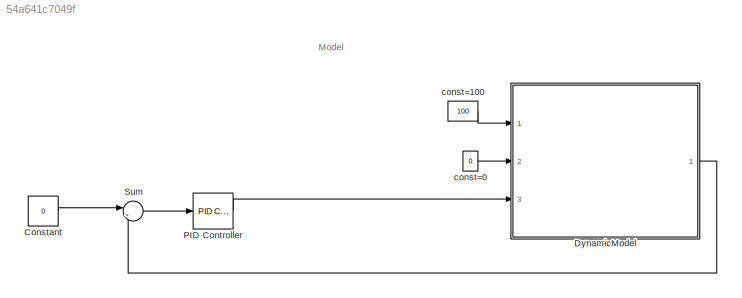
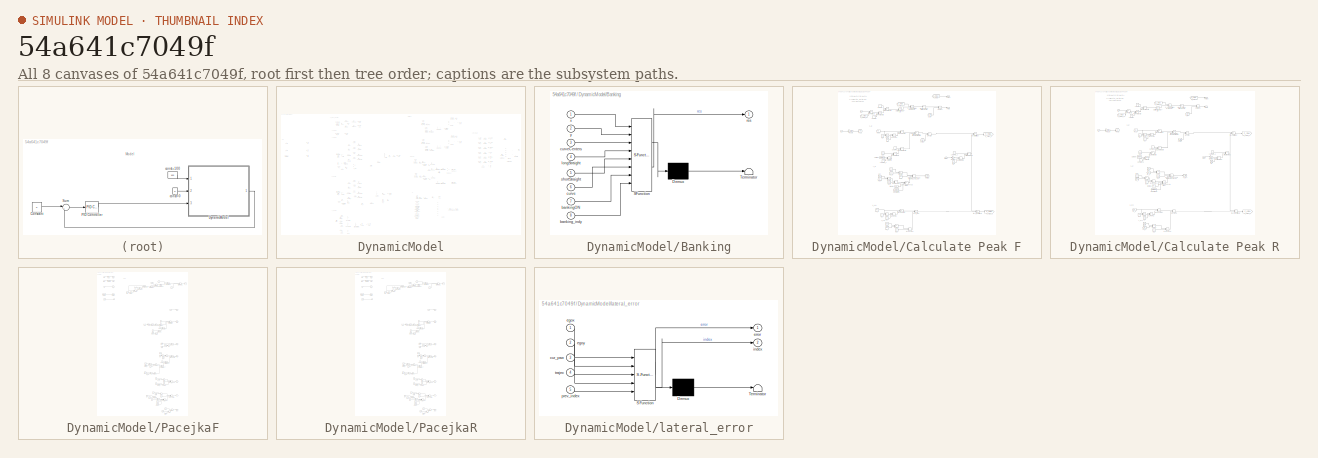
[diagram: thumbnail index - all 8 canvases of the model, root first then tree order]
MODEL slx_54a641c7049f
KIND model
CONFIG AbsTol = auto
CONFIG EnableMultiTasking = off
CONFIG FixedStep = auto
CONFIG MaxStep = auto
CONFIG MinStep = auto
CONFIG RelTol = 1e-3
CONFIG SampleTimeConstraint = Unconstrained
CONFIG Solver = ode15s
CONFIG SolverName = ode15s
CONFIG StartTime = 0.0
CONFIG StopTime = 71
BLOCK [Constant] Constant
  Value = 0
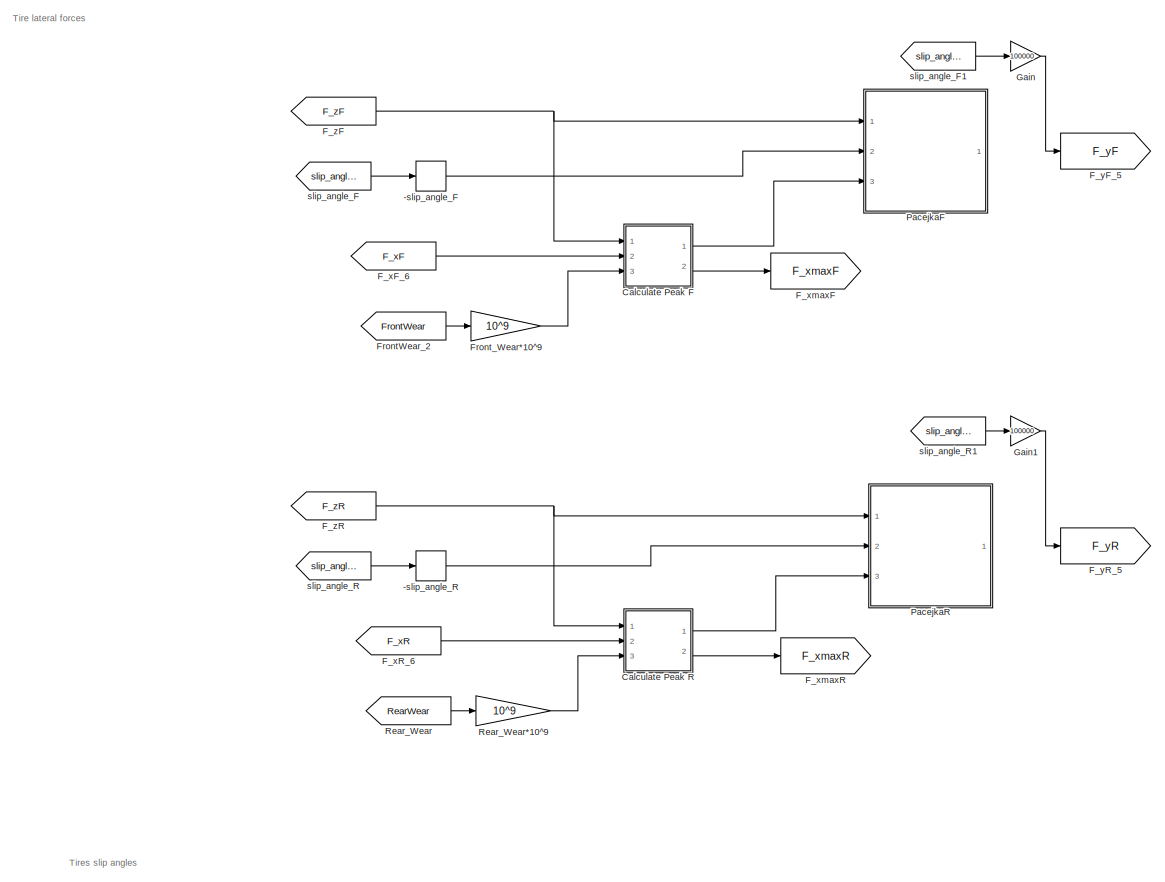
[diagram: DynamicModel - part 1/10, top center region]
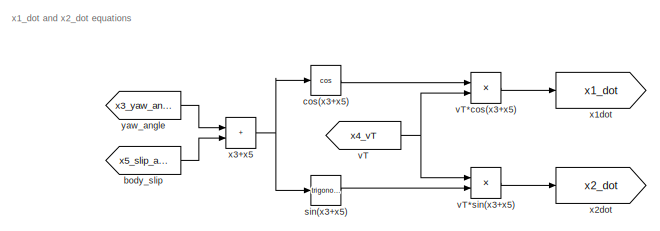
[diagram: DynamicModel - part 2/10, top left region]
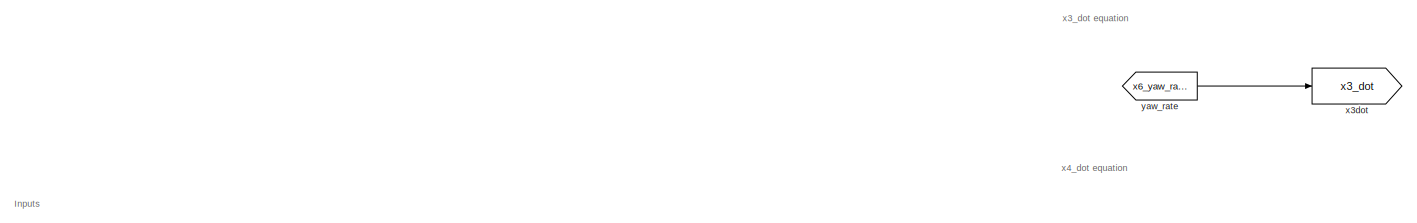
[diagram: DynamicModel - part 3/10, top left region]
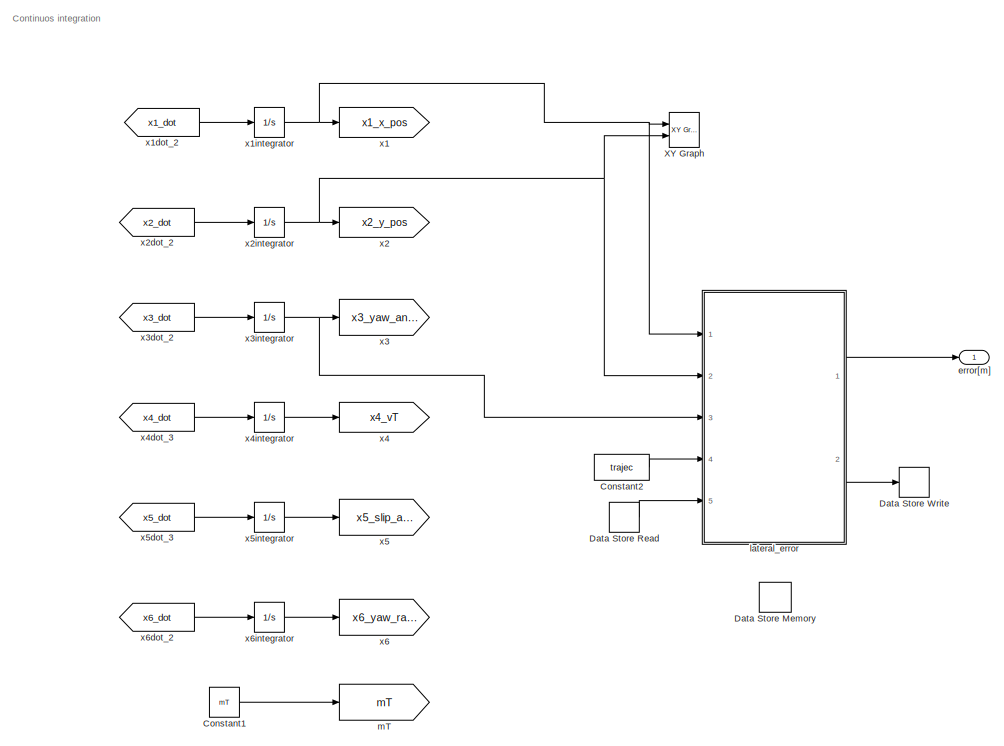
[diagram: DynamicModel - part 4/10, top right region]
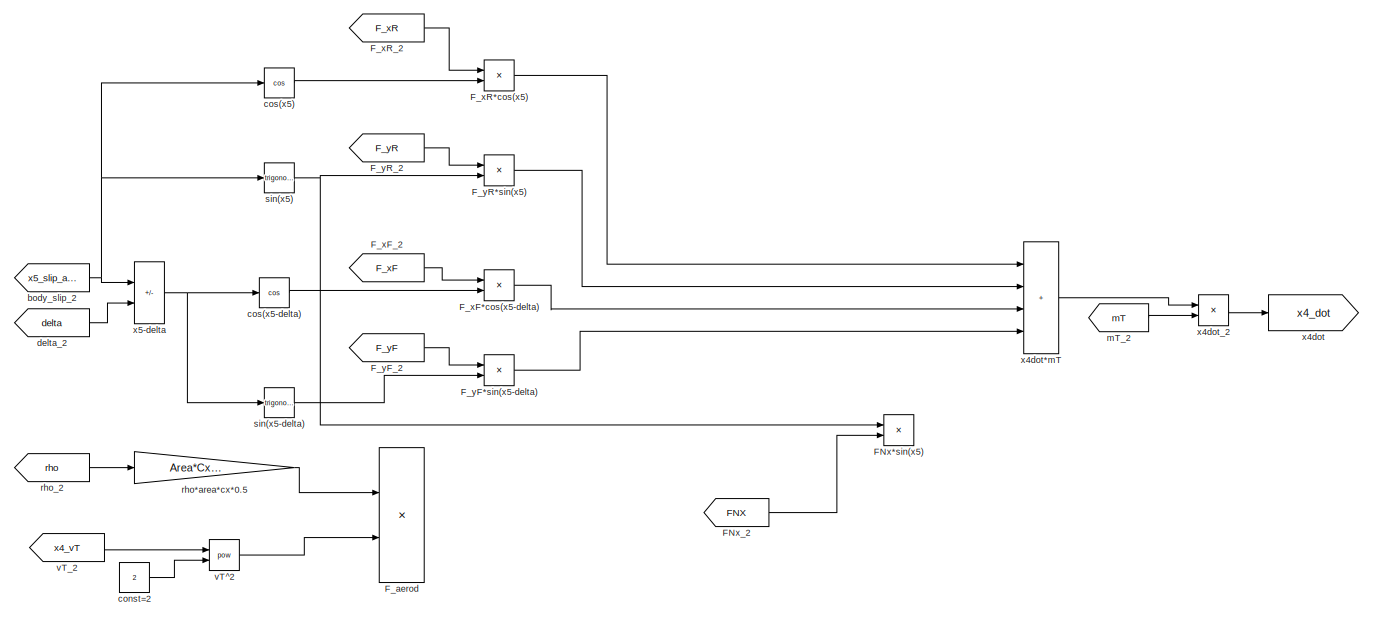
[diagram: DynamicModel - part 5/10, central region]
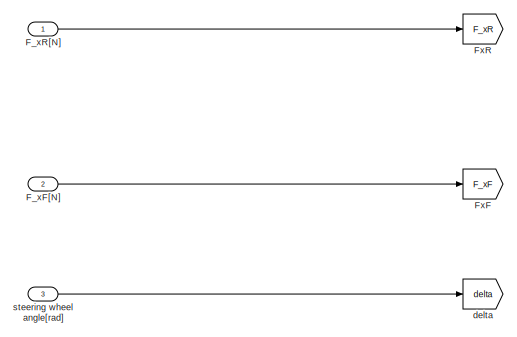
[diagram: DynamicModel - part 6/10, top left region]
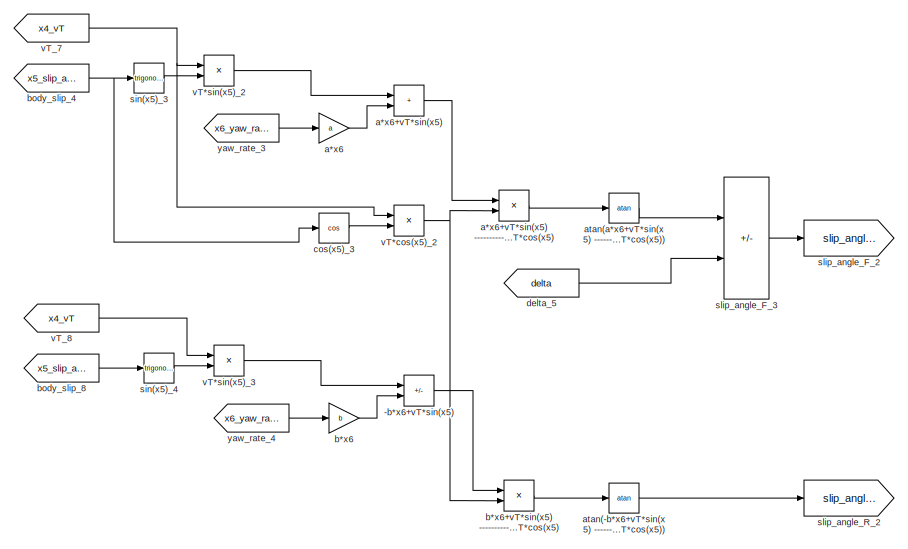
[diagram: DynamicModel - part 7/10, central region]
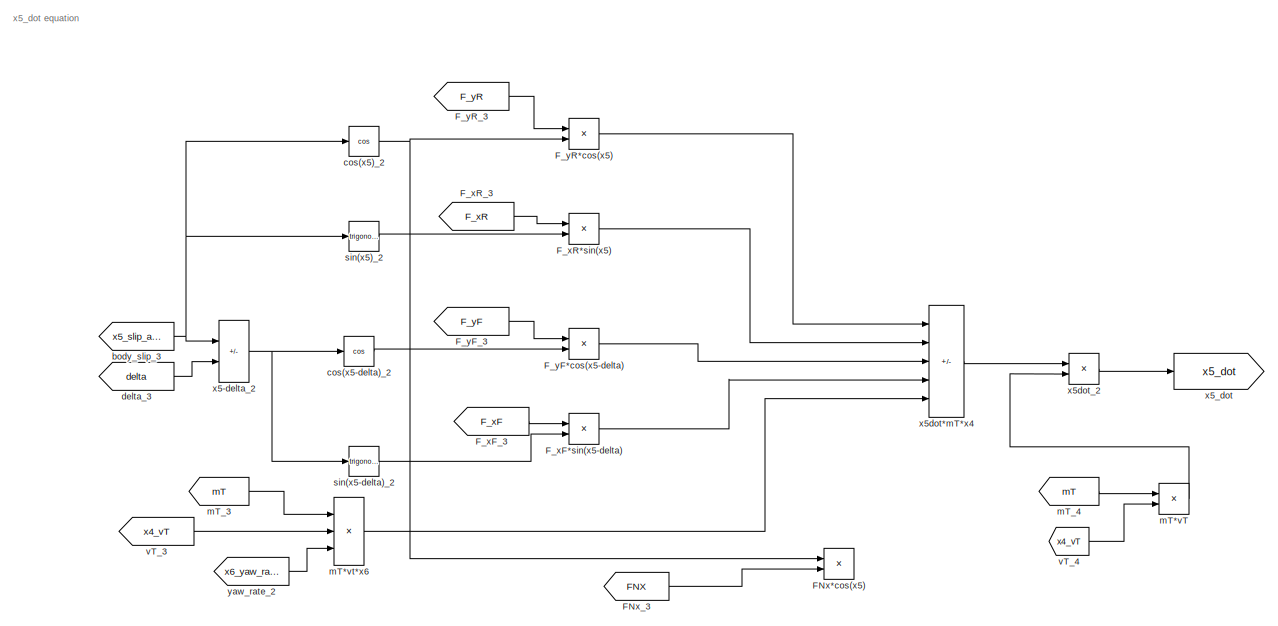
[diagram: DynamicModel - part 8/10, central region]
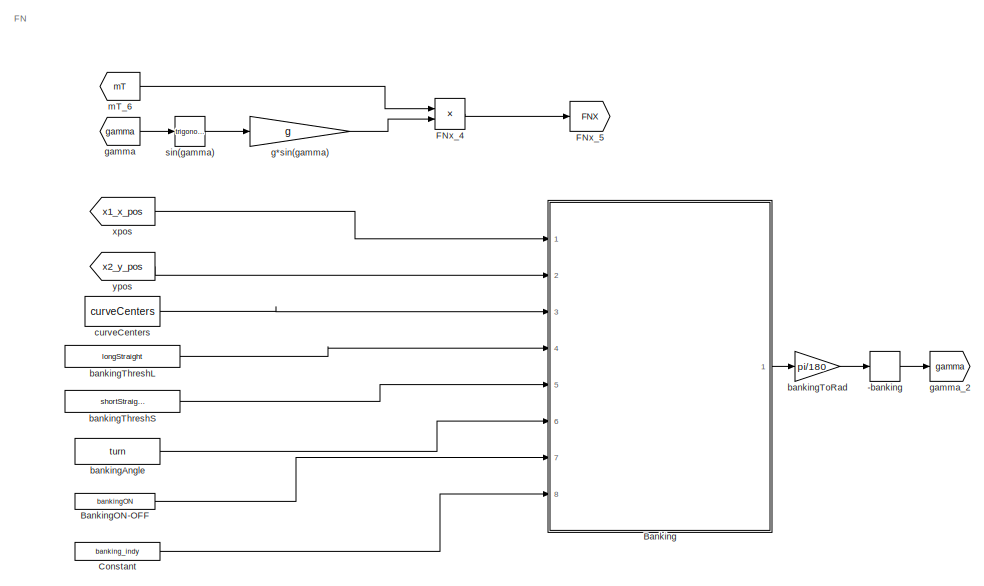
[diagram: DynamicModel - part 9/10, bottom center region]
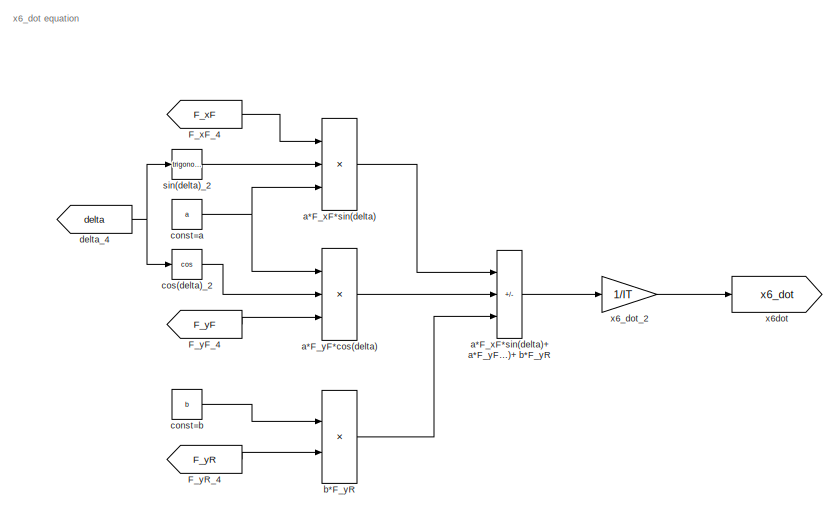
[diagram: DynamicModel - part 10/10, bottom left region]
BLOCK [SubSystem] DynamicModel
  Ports = [3, 1]
  RequestExecContextInheritance = off
BLOCK [Sum] DynamicModel/-b*x6+vT*sin(x5)
  IconShape = rectangular
  Inputs = +-
  Ports = [2, 1]
BLOCK [UnaryMinus] DynamicModel/-banking
  Commented = on
BLOCK [UnaryMinus] DynamicModel/-slip_angle_F
  Commented = on
BLOCK [UnaryMinus] DynamicModel/-slip_angle_R
  Commented = on
BLOCK [SubSystem] DynamicModel/Banking
  Commented = on
  ErrorFcn = Stateflow.Translate.translate
  PermitHierarchicalResolution = ExplicitOnly
  Ports = [8, 1]
  RequestExecContextInheritance = off
  SFBlockType = MATLAB Function
  TreatAsAtomicUnit = on
BLOCK [Demux] DynamicModel/Banking/ Demux 
  Outputs = 1
  Ports = [1, 1]
BLOCK [S-Function] DynamicModel/Banking/ SFunction 
  EnableBusSupport = on
  FunctionName = sf_sfun
  PortCounts = [8 2]
  Ports = [8, 2]
  SFcnIsStateOwnerBlock = off
  SFunctionDeploymentMode = off
  Tag = Stateflow S-Function 2
BLOCK [Terminator] DynamicModel/Banking/ Terminator 
BLOCK [Inport] DynamicModel/Banking/bankingON
  Port = 7
BLOCK [Inport] DynamicModel/Banking/banking_indy
  Port = 8
BLOCK [Inport] DynamicModel/Banking/curve
  Port = 6
BLOCK [Inport] DynamicModel/Banking/curveCenters
  Port = 3
BLOCK [Inport] DynamicModel/Banking/longStraight
  Port = 4
BLOCK [Outport] DynamicModel/Banking/res
BLOCK [Inport] DynamicModel/Banking/shortStraight
  Port = 5
BLOCK [Inport] DynamicModel/Banking/x
BLOCK [Inport] DynamicModel/Banking/y
  Port = 2
BLOCK [Constant] DynamicModel/BankingON-OFF
  Commented = on
  Value = bankingON
BLOCK [SubSystem] DynamicModel/Calculate Peak F
  Commented = on
  Ports = [3, 2]
  RequestExecContextInheritance = off
BLOCK [Product] DynamicModel/Calculate Peak F/((a1Fz+a2)Fz) (1-a15*camber^2)
  Ports = [2, 1]
BLOCK [Product] DynamicModel/Calculate Peak F/(D+V_lat)*wear
  Ports = [2, 1]
BLOCK [Product] DynamicModel/Calculate Peak F/(D+V_long)*wear
  Ports = [2, 1]
BLOCK [Math] DynamicModel/Calculate Peak F/(Fx*Fymax^-1)^2
  Operator = pow
  Ports = [2, 1]
BLOCK [Product] DynamicModel/Calculate Peak F/(a1Fz+a2)Fz
  Ports = [2, 1]
BLOCK [Product] DynamicModel/Calculate Peak F/(b1Fz+b2)Fz
  Ports = [2, 1]
BLOCK [Product] DynamicModel/Calculate Peak F/1 ------ w1*wear+w2
  Inputs = */
  Ports = [2, 1]
BLOCK [Sum] DynamicModel/Calculate Peak F/1-(Fx*Fymax^-1)^2
  IconShape = rectangular
  Inputs = +-
  Ports = [2, 1]
BLOCK [Sum] DynamicModel/Calculate Peak F/1-a15*camber^2
  IconShape = rectangular
  Inputs = +-
  Ports = [2, 1]
BLOCK [Constant] DynamicModel/Calculate Peak F/Constant11
  Value = camber
BLOCK [Sum] DynamicModel/Calculate Peak F/D+V_lat
  IconShape = rectangular
  Ports = [2, 1]
BLOCK [Sum] DynamicModel/Calculate Peak F/D+V_long
  IconShape = rectangular
  Ports = [2, 1]
BLOCK [From] DynamicModel/Calculate Peak F/F_xmax
  GotoTag = F_xmax
BLOCK [Goto] DynamicModel/Calculate Peak F/F_xmax_2
  GotoTag = F_xmax
BLOCK [From] DynamicModel/Calculate Peak F/F_xmax_3
  GotoTag = F_xmax
BLOCK [Product] DynamicModel/Calculate Peak F/F_ymax* sqrt(1-(Fx*Fymax^-1)^2) 
  Ports = [2, 1]
BLOCK [From] DynamicModel/Calculate Peak F/F_ymax_2
  GotoTag = F_ymax
BLOCK [Goto] DynamicModel/Calculate Peak F/F_ymax_3
  GotoTag = F_ymax
BLOCK [From] DynamicModel/Calculate Peak F/From22
  GotoTag = Fz
BLOCK [Inport] DynamicModel/Calculate Peak F/Fx
  Port = 2
  Unit = N
BLOCK [Product] DynamicModel/Calculate Peak F/Fx*Fymax^-1
  Inputs = */
  Ports = [2, 1]
BLOCK [Outport] DynamicModel/Calculate Peak F/Fxmax
  Port = 2
BLOCK [Inport] DynamicModel/Calculate Peak F/Fz
  Unit = N
BLOCK [Gain] DynamicModel/Calculate Peak F/Fz*10^-3
  Gain = 10^-3
BLOCK [Goto] DynamicModel/Calculate Peak F/Fz_2
  GotoTag = Fz
BLOCK [From] DynamicModel/Calculate Peak F/Fz_3
  GotoTag = Fz
BLOCK [From] DynamicModel/Calculate Peak F/Fz_4
  GotoTag = Fz
BLOCK [From] DynamicModel/Calculate Peak F/Fz_5
  GotoTag = Fz
BLOCK [From] DynamicModel/Calculate Peak F/Fz_6
  GotoTag = Fz
BLOCK [From] DynamicModel/Calculate Peak F/Fz_7
  GotoTag = Fz
BLOCK [Outport] DynamicModel/Calculate Peak F/Peak
BLOCK [From] DynamicModel/Calculate Peak F/V_lat
  GotoTag = V_lat
BLOCK [From] DynamicModel/Calculate Peak F/V_lat_2
  GotoTag = V_lat
BLOCK [Goto] DynamicModel/Calculate Peak F/V_lat_3
  GotoTag = V_lat
BLOCK [Inport] DynamicModel/Calculate Peak F/Wear
  Port = 3
BLOCK [Constant] DynamicModel/Calculate Peak F/a1
  Value = a1
BLOCK [Constant] DynamicModel/Calculate Peak F/a11
  Value = a11
BLOCK [Product] DynamicModel/Calculate Peak F/a11Fz
  Ports = [2, 1]
BLOCK [Constant] DynamicModel/Calculate Peak F/a12
  Value = a12
BLOCK [Constant] DynamicModel/Calculate Peak F/a13
  Value = a13
BLOCK [Product] DynamicModel/Calculate Peak F/a13Fz
  Ports = [2, 1]
BLOCK [Sum] DynamicModel/Calculate Peak F/a13Fz+a14
  IconShape = rectangular
  Ports = [2, 1]
BLOCK [Product] DynamicModel/Calculate Peak F/a13Fz+a14+Fz+camber
  Inputs = 3
  Ports = [3, 1]
BLOCK [Sum] DynamicModel/Calculate Peak F/a13Fz+a14+Fz+camber +a12+a11Fz
  IconShape = rectangular
  Inputs = +++
  Ports = [3, 1]
BLOCK [Constant] DynamicModel/Calculate Peak F/a14
  Value = a14
BLOCK [Constant] DynamicModel/Calculate Peak F/a15
  Value = a15
BLOCK [Product] DynamicModel/Calculate Peak F/a15*camber^2
  Ports = [2, 1]
BLOCK [Product] DynamicModel/Calculate Peak F/a1Fz
  Ports = [2, 1]
BLOCK [Sum] DynamicModel/Calculate Peak F/a1Fz+a2
  IconShape = rectangular
  Ports = [2, 1]
BLOCK [Constant] DynamicModel/Calculate Peak F/a2
  Value = a2
BLOCK [Abs] DynamicModel/Calculate Peak F/abs(F_ymax* sqrt(1-(Fx*Fymax^-1)^2) )
  SaturateOnIntegerOverflow = off
BLOCK [Constant] DynamicModel/Calculate Peak F/b1
  Value = b1
BLOCK [Constant] DynamicModel/Calculate Peak F/b11
  Value = b11
BLOCK [Product] DynamicModel/Calculate Peak F/b11Fz
  Ports = [2, 1]
BLOCK [Sum] DynamicModel/Calculate Peak F/b11Fz+b12
  IconShape = rectangular
  Ports = [2, 1]
BLOCK [Constant] DynamicModel/Calculate Peak F/b12
  Value = b12
BLOCK [Product] DynamicModel/Calculate Peak F/b1Fz
  Ports = [2, 1]
BLOCK [Sum] DynamicModel/Calculate Peak F/b1Fz+b2
  IconShape = rectangular
  Ports = [2, 1]
BLOCK [Constant] DynamicModel/Calculate Peak F/b2
  Value = b2
BLOCK [Constant] DynamicModel/Calculate Peak F/camber
  Value = camber
BLOCK [Math] DynamicModel/Calculate Peak F/camber^2
  Operator = pow
  Ports = [2, 1]
BLOCK [Constant] DynamicModel/Calculate Peak F/const=1
BLOCK [Constant] DynamicModel/Calculate Peak F/const=1_2
BLOCK [Constant] DynamicModel/Calculate Peak F/const=1_3
BLOCK [Constant] DynamicModel/Calculate Peak F/const=2
  Value = 2
BLOCK [Constant] DynamicModel/Calculate Peak F/const=2_2
  Value = 2
BLOCK [Sum] DynamicModel/Calculate Peak F/newD+V
  IconShape = rectangular
  Inputs = +-
  Ports = [2, 1]
BLOCK [Sqrt] DynamicModel/Calculate Peak F/sqrt(1-(Fx*Fymax^-1)^2)
BLOCK [Gain] DynamicModel/Calculate Peak F/w1*wear
  Gain = w1
BLOCK [Sum] DynamicModel/Calculate Peak F/w1*wear+w2
  IconShape = rectangular
  Ports = [2, 1]
BLOCK [Constant] DynamicModel/Calculate Peak F/w2
  Value = w2
BLOCK [SubSystem] DynamicModel/Calculate Peak R
  Commented = on
  Ports = [3, 2]
  RequestExecContextInheritance = off
BLOCK [Product] DynamicModel/Calculate Peak R/((a1Fz+a2)Fz) (1-a15*camber^2)
  Ports = [2, 1]
BLOCK [Product] DynamicModel/Calculate Peak R/(D+V_lat)*wear
  Ports = [2, 1]
BLOCK [Product] DynamicModel/Calculate Peak R/(D+V_long)*wear
  Ports = [2, 1]
BLOCK [Math] DynamicModel/Calculate Peak R/(Fx*Fymax^-1)^2
  Operator = pow
  Ports = [2, 1]
BLOCK [Product] DynamicModel/Calculate Peak R/(a1Fz+a2)Fz
  Ports = [2, 1]
BLOCK [Product] DynamicModel/Calculate Peak R/(b1Fz+b2)Fz
  Ports = [2, 1]
BLOCK [Product] DynamicModel/Calculate Peak R/1 ------ w1*wear+w2
  Inputs = */
  Ports = [2, 1]
BLOCK [Sum] DynamicModel/Calculate Peak R/1-(Fx*Fymax^-1)^2
  IconShape = rectangular
  Inputs = +-
  Ports = [2, 1]
BLOCK [Sum] DynamicModel/Calculate Peak R/1-a15*camber^2
  IconShape = rectangular
  Inputs = +-
  Ports = [2, 1]
BLOCK [Constant] DynamicModel/Calculate Peak R/Constant11
  Value = camber
BLOCK [Sum] DynamicModel/Calculate Peak R/D+V_lat
  IconShape = rectangular
  Ports = [2, 1]
BLOCK [Sum] DynamicModel/Calculate Peak R/D+V_long
  IconShape = rectangular
  Ports = [2, 1]
BLOCK [From] DynamicModel/Calculate Peak R/F_xmax
  GotoTag = F_xmax
BLOCK [Goto] DynamicModel/Calculate Peak R/F_xmax_2
  GotoTag = F_xmax
BLOCK [From] DynamicModel/Calculate Peak R/F_xmax_3
  GotoTag = F_xmax
BLOCK [Product] DynamicModel/Calculate Peak R/F_ymax* sqrt(1-(Fx*Fymax^-1)^2) 
  Ports = [2, 1]
BLOCK [From] DynamicModel/Calculate Peak R/F_ymax_2
  GotoTag = F_ymax
BLOCK [Goto] DynamicModel/Calculate Peak R/F_ymax_3
  GotoTag = F_ymax
BLOCK [From] DynamicModel/Calculate Peak R/From22
  GotoTag = Fz
BLOCK [Inport] DynamicModel/Calculate Peak R/Fx
  Port = 2
  Unit = N
BLOCK [Product] DynamicModel/Calculate Peak R/Fx*Fymax^-1
  Inputs = */
  Ports = [2, 1]
BLOCK [Outport] DynamicModel/Calculate Peak R/Fxmax
  Port = 2
BLOCK [Inport] DynamicModel/Calculate Peak R/Fz
  Unit = N
BLOCK [Gain] DynamicModel/Calculate Peak R/Fz*10^-3
  Gain = 10^-3
BLOCK [Goto] DynamicModel/Calculate Peak R/Fz_2
  GotoTag = Fz
BLOCK [From] DynamicModel/Calculate Peak R/Fz_3
  GotoTag = Fz
BLOCK [From] DynamicModel/Calculate Peak R/Fz_4
  GotoTag = Fz
BLOCK [From] DynamicModel/Calculate Peak R/Fz_5
  GotoTag = Fz
BLOCK [From] DynamicModel/Calculate Peak R/Fz_6
  GotoTag = Fz
BLOCK [From] DynamicModel/Calculate Peak R/Fz_7
  GotoTag = Fz
BLOCK [Outport] DynamicModel/Calculate Peak R/Peak
BLOCK [From] DynamicModel/Calculate Peak R/V_lat
  GotoTag = V_lat
BLOCK [From] DynamicModel/Calculate Peak R/V_lat_2
  GotoTag = V_lat
BLOCK [Goto] DynamicModel/Calculate Peak R/V_lat_3
  GotoTag = V_lat
BLOCK [Inport] DynamicModel/Calculate Peak R/Wear
  Port = 3
BLOCK [Constant] DynamicModel/Calculate Peak R/a1
  Value = a1
BLOCK [Constant] DynamicModel/Calculate Peak R/a11
  Value = a11
BLOCK [Product] DynamicModel/Calculate Peak R/a11Fz
  Ports = [2, 1]
BLOCK [Constant] DynamicModel/Calculate Peak R/a12
  Value = a12
BLOCK [Constant] DynamicModel/Calculate Peak R/a13
  Value = a13
BLOCK [Product] DynamicModel/Calculate Peak R/a13Fz
  Ports = [2, 1]
BLOCK [Sum] DynamicModel/Calculate Peak R/a13Fz+a14
  IconShape = rectangular
  Ports = [2, 1]
BLOCK [Product] DynamicModel/Calculate Peak R/a13Fz+a14+Fz+camber
  Inputs = 3
  Ports = [3, 1]
BLOCK [Sum] DynamicModel/Calculate Peak R/a13Fz+a14+Fz+camber +a12+a11Fz
  IconShape = rectangular
  Inputs = +++
  Ports = [3, 1]
BLOCK [Constant] DynamicModel/Calculate Peak R/a14
  Value = a14
BLOCK [Constant] DynamicModel/Calculate Peak R/a15
  Value = a15
BLOCK [Product] DynamicModel/Calculate Peak R/a15*camber^2
  Ports = [2, 1]
BLOCK [Product] DynamicModel/Calculate Peak R/a1Fz
  Ports = [2, 1]
BLOCK [Sum] DynamicModel/Calculate Peak R/a1Fz+a2
  IconShape = rectangular
  Ports = [2, 1]
BLOCK [Constant] DynamicModel/Calculate Peak R/a2
  Value = a2
BLOCK [Abs] DynamicModel/Calculate Peak R/abs(F_ymax* sqrt(1-(Fx*Fymax^-1)^2) )
  SaturateOnIntegerOverflow = off
BLOCK [Constant] DynamicModel/Calculate Peak R/b1
  Value = b1
BLOCK [Constant] DynamicModel/Calculate Peak R/b11
  Value = b11
BLOCK [Product] DynamicModel/Calculate Peak R/b11Fz
  Ports = [2, 1]
BLOCK [Sum] DynamicModel/Calculate Peak R/b11Fz+b12
  IconShape = rectangular
  Ports = [2, 1]
BLOCK [Constant] DynamicModel/Calculate Peak R/b12
  Value = b12
BLOCK [Product] DynamicModel/Calculate Peak R/b1Fz
  Ports = [2, 1]
BLOCK [Sum] DynamicModel/Calculate Peak R/b1Fz+b2
  IconShape = rectangular
  Ports = [2, 1]
BLOCK [Constant] DynamicModel/Calculate Peak R/b2
  Value = b2
BLOCK [Constant] DynamicModel/Calculate Peak R/camber
  Value = camber
BLOCK [Math] DynamicModel/Calculate Peak R/camber^2
  Operator = pow
  Ports = [2, 1]
BLOCK [Constant] DynamicModel/Calculate Peak R/const=1
BLOCK [Constant] DynamicModel/Calculate Peak R/const=1_2
BLOCK [Constant] DynamicModel/Calculate Peak R/const=1_3
BLOCK [Constant] DynamicModel/Calculate Peak R/const=2
  Value = 2
BLOCK [Constant] DynamicModel/Calculate Peak R/const=2_2
  Value = 2
BLOCK [Sum] DynamicModel/Calculate Peak R/newD+V
  IconShape = rectangular
  Inputs = +-
  Ports = [2, 1]
BLOCK [Sqrt] DynamicModel/Calculate Peak R/sqrt(1-(Fx*Fymax^-1)^2)
BLOCK [Gain] DynamicModel/Calculate Peak R/w1*wear
  Gain = w1
BLOCK [Sum] DynamicModel/Calculate Peak R/w1*wear+w2
  IconShape = rectangular
  Ports = [2, 1]
BLOCK [Constant] DynamicModel/Calculate Peak R/w2
  Value = w2
BLOCK [Constant] DynamicModel/Constant
  Commented = on
  Value = banking_indy
BLOCK [Constant] DynamicModel/Constant1
  Value = mT
BLOCK [Constant] DynamicModel/Constant2
  Value = trajec
BLOCK [DataStoreMemory] DynamicModel/Data Store Memory
  DataStoreName = index
  InitialValue = 1
  OutMax = size(trajec,2)
  OutMin = 1
  ReadBeforeWriteMsg = warning
  ShowAdditionalParam = off
  WriteAfterReadMsg = warning
  WriteAfterWriteMsg = warning
BLOCK [DataStoreRead] DynamicModel/Data Store Read
  DataStoreName = index
  Ports = [0, 1]
BLOCK [DataStoreWrite] DynamicModel/Data Store Write
  DataStoreName = index
  Ports = [1]
BLOCK [Product] DynamicModel/FNx*cos(x5)
  Commented = on
  Ports = [2, 1]
BLOCK [Product] DynamicModel/FNx*sin(x5)
  Commented = on
  Ports = [2, 1]
BLOCK [From] DynamicModel/FNx_2
  Commented = on
  GotoTag = FNX
BLOCK [From] DynamicModel/FNx_3
  Commented = on
  GotoTag = FNX
BLOCK [Product] DynamicModel/FNx_4
  Commented = on
  Ports = [2, 1]
BLOCK [Goto] DynamicModel/FNx_5
  Commented = on
  GotoTag = FNX
BLOCK [Product] DynamicModel/F_aerod
  Commented = on
  Ports = [2, 1]
BLOCK [Product] DynamicModel/F_xF*cos(x5-delta)
  Ports = [2, 1]
BLOCK [Product] DynamicModel/F_xF*sin(x5-delta)
  Ports = [2, 1]
BLOCK [Inport] DynamicModel/F_xF[N]
  Port = 2
  Unit = N
BLOCK [From] DynamicModel/F_xF_2
  GotoTag = F_xF
BLOCK [From] DynamicModel/F_xF_3
  GotoTag = F_xF
BLOCK [From] DynamicModel/F_xF_4
  GotoTag = F_xF
BLOCK [From] DynamicModel/F_xF_6
  Commented = on
  GotoTag = F_xF
BLOCK [Product] DynamicModel/F_xR*cos(x5)
  Ports = [2, 1]
BLOCK [Product] DynamicModel/F_xR*sin(x5)
  Ports = [2, 1]
BLOCK [Inport] DynamicModel/F_xR[N]
  Unit = N
BLOCK [From] DynamicModel/F_xR_2
  GotoTag = F_xR
BLOCK [From] DynamicModel/F_xR_3
  GotoTag = F_xR
BLOCK [From] DynamicModel/F_xR_6
  Commented = on
  GotoTag = F_xR
BLOCK [Goto] DynamicModel/F_xmaxF
  Commented = on
  GotoTag = F_xmaxF
BLOCK [Goto] DynamicModel/F_xmaxR
  Commented = on
  GotoTag = F_xmaxR
BLOCK [Product] DynamicModel/F_yF*cos(x5-delta)
  Ports = [2, 1]
BLOCK [Product] DynamicModel/F_yF*sin(x5-delta)
  Ports = [2, 1]
BLOCK [From] DynamicModel/F_yF_2
  GotoTag = F_yF
BLOCK [From] DynamicModel/F_yF_3
  GotoTag = F_yF
BLOCK [From] DynamicModel/F_yF_4
  GotoTag = F_yF
BLOCK [Goto] DynamicModel/F_yF_5
  GotoTag = F_yF
BLOCK [Product] DynamicModel/F_yR*cos(x5)
  Ports = [2, 1]
BLOCK [Product] DynamicModel/F_yR*sin(x5)
  Ports = [2, 1]
BLOCK [From] DynamicModel/F_yR_2
  GotoTag = F_yR
BLOCK [From] DynamicModel/F_yR_3
  GotoTag = F_yR
BLOCK [From] DynamicModel/F_yR_4
  GotoTag = F_yR
BLOCK [Goto] DynamicModel/F_yR_5
  GotoTag = F_yR
BLOCK [From] DynamicModel/F_zF
  Commented = on
  GotoTag = F_zF
BLOCK [From] DynamicModel/F_zR
  Commented = on
  GotoTag = F_zR
BLOCK [From] DynamicModel/FrontWear_2
  Commented = on
  GotoTag = FrontWear
BLOCK [Gain] DynamicModel/Front_Wear*10^9
  Commented = on
  Gain = 10^9
BLOCK [Goto] DynamicModel/FxF
  GotoTag = F_xF
BLOCK [Goto] DynamicModel/FxR
  GotoTag = F_xR
BLOCK [Gain] DynamicModel/Gain
  Gain = 100000
BLOCK [Gain] DynamicModel/Gain1
  Gain = 100000
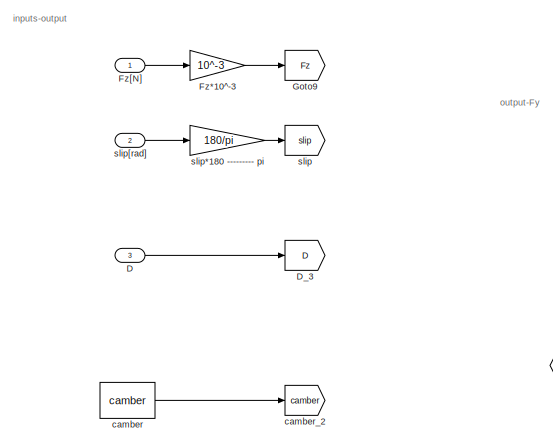
[diagram: DynamicModel/PacejkaF - part 1/4, top left region]
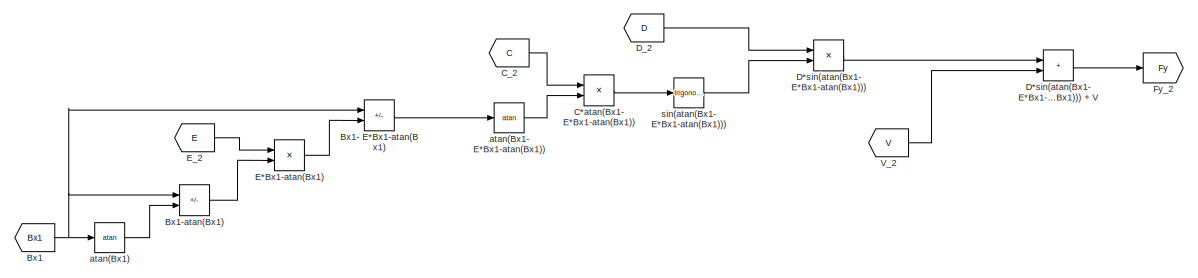
[diagram: DynamicModel/PacejkaF - part 2/4, top center region]
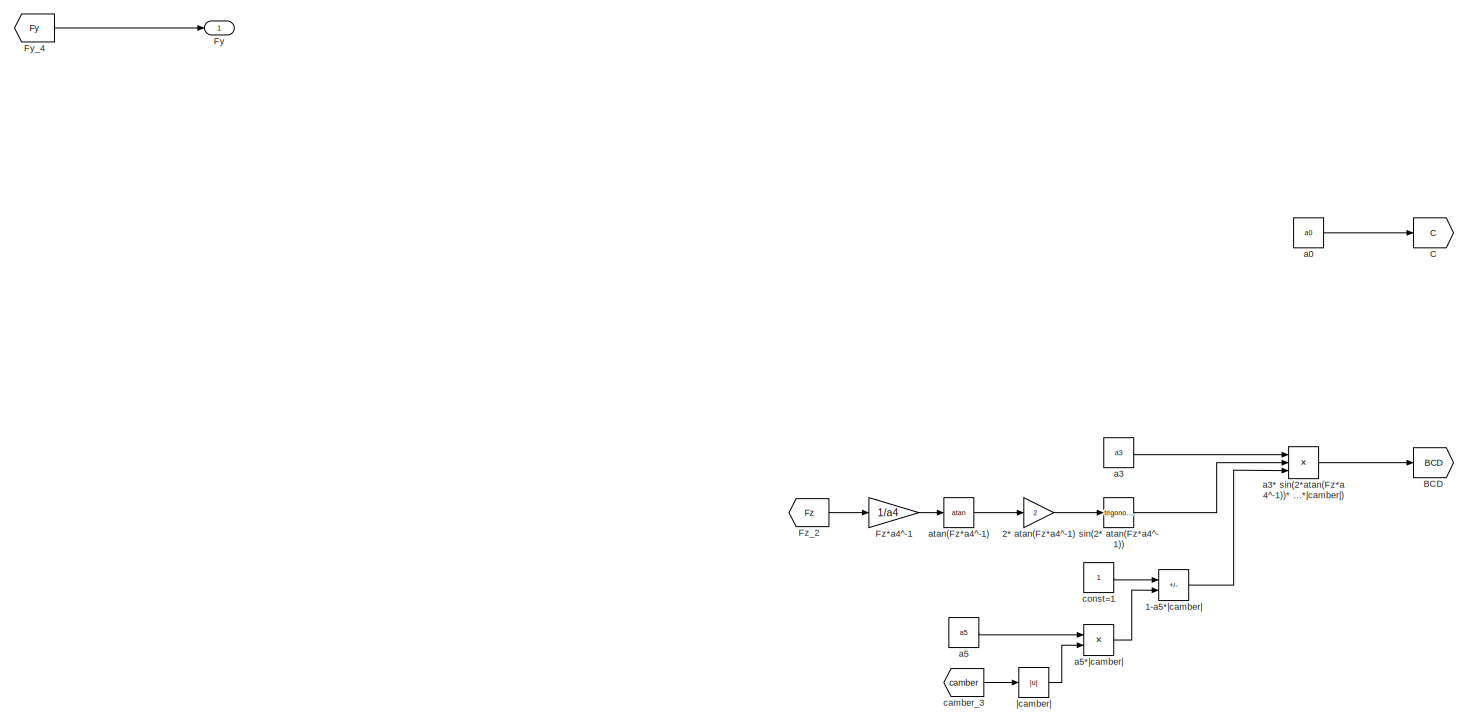
[diagram: DynamicModel/PacejkaF - part 3/4, full width, top band]
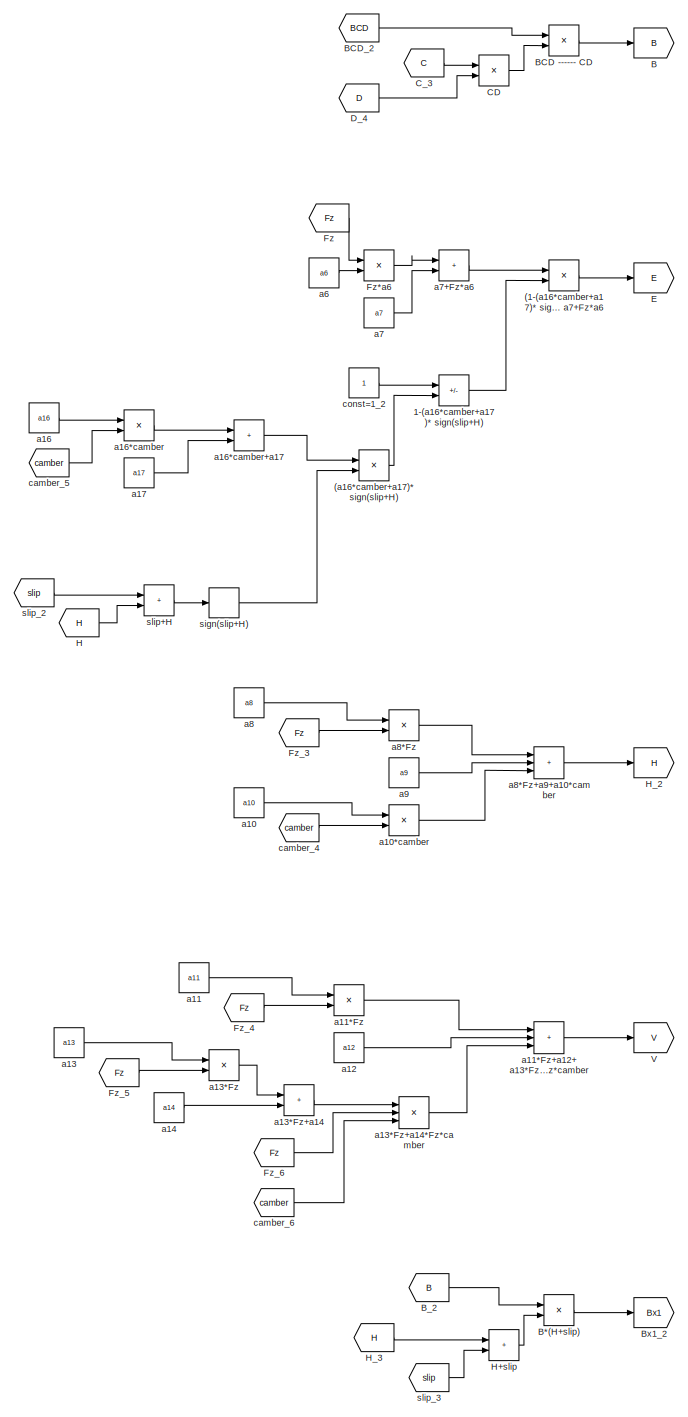
[diagram: DynamicModel/PacejkaF - part 4/4, bottom right region]
BLOCK [SubSystem] DynamicModel/PacejkaF
  Commented = on
  Ports = [3, 1]
  RequestExecContextInheritance = off
BLOCK [Product] DynamicModel/PacejkaF/(1-(a16*camber+a17)* sign(slip+H))* a7+Fz*a6
  Ports = [2, 1]
BLOCK [Product] DynamicModel/PacejkaF/(a16*camber+a17)* sign(slip+H)
  Ports = [2, 1]
BLOCK [Sum] DynamicModel/PacejkaF/1-(a16*camber+a17)* sign(slip+H)
  IconShape = rectangular
  Inputs = +-
  Ports = [2, 1]
BLOCK [Sum] DynamicModel/PacejkaF/1-a5*|camber|
  IconShape = rectangular
  Inputs = +-
  Ports = [2, 1]
BLOCK [Gain] DynamicModel/PacejkaF/2* atan(Fz*a4^-1)
  Gain = 2
BLOCK [Goto] DynamicModel/PacejkaF/B
  GotoTag = B
BLOCK [Product] DynamicModel/PacejkaF/B*(H+slip)
  Ports = [2, 1]
BLOCK [Goto] DynamicModel/PacejkaF/BCD
  GotoTag = BCD
BLOCK [Product] DynamicModel/PacejkaF/BCD ------ CD
  Inputs = */
  Ports = [2, 1]
BLOCK [From] DynamicModel/PacejkaF/BCD_2
  GotoTag = BCD
BLOCK [From] DynamicModel/PacejkaF/B_2
  GotoTag = B
BLOCK [From] DynamicModel/PacejkaF/Bx1
  GotoTag = Bx1
BLOCK [Sum] DynamicModel/PacejkaF/Bx1- E*Bx1-atan(Bx1)
  IconShape = rectangular
  Inputs = +-
  Ports = [2, 1]
BLOCK [Sum] DynamicModel/PacejkaF/Bx1-atan(Bx1)
  IconShape = rectangular
  Inputs = +-
  Ports = [2, 1]
BLOCK [Goto] DynamicModel/PacejkaF/Bx1_2
  GotoTag = Bx1
BLOCK [Goto] DynamicModel/PacejkaF/C
  GotoTag = C
BLOCK [Product] DynamicModel/PacejkaF/C*atan(Bx1- E*Bx1-atan(Bx1))
  Ports = [2, 1]
BLOCK [Product] DynamicModel/PacejkaF/CD
  Ports = [2, 1]
BLOCK [From] DynamicModel/PacejkaF/C_2
  GotoTag = C
BLOCK [From] DynamicModel/PacejkaF/C_3
  GotoTag = C
BLOCK [Inport] DynamicModel/PacejkaF/D
  Port = 3
BLOCK [Product] DynamicModel/PacejkaF/D*sin(atan(Bx1- E*Bx1-atan(Bx1)))
  Ports = [2, 1]
BLOCK [Sum] DynamicModel/PacejkaF/D*sin(atan(Bx1- E*Bx1-atan(Bx1))) + V
  IconShape = rectangular
  Ports = [2, 1]
BLOCK [From] DynamicModel/PacejkaF/D_2
  GotoTag = D
BLOCK [Goto] DynamicModel/PacejkaF/D_3
  GotoTag = D
BLOCK [From] DynamicModel/PacejkaF/D_4
  GotoTag = D
BLOCK [Goto] DynamicModel/PacejkaF/E
  GotoTag = E
BLOCK [Product] DynamicModel/PacejkaF/E*Bx1-atan(Bx1)
  Ports = [2, 1]
BLOCK [From] DynamicModel/PacejkaF/E_2
  GotoTag = E
BLOCK [Outport] DynamicModel/PacejkaF/Fy
  Unit = N
BLOCK [Goto] DynamicModel/PacejkaF/Fy_2
  GotoTag = Fy
BLOCK [From] DynamicModel/PacejkaF/Fy_4
  GotoTag = Fy
BLOCK [From] DynamicModel/PacejkaF/Fz
  GotoTag = Fz
BLOCK [Gain] DynamicModel/PacejkaF/Fz*10^-3
  Gain = 10^-3
BLOCK [Gain] DynamicModel/PacejkaF/Fz*a4^-1
  Gain = 1/a4
BLOCK [Product] DynamicModel/PacejkaF/Fz*a6
  Ports = [2, 1]
BLOCK [Inport] DynamicModel/PacejkaF/Fz[N]
  Unit = N
BLOCK [From] DynamicModel/PacejkaF/Fz_2
  GotoTag = Fz
BLOCK [From] DynamicModel/PacejkaF/Fz_3
  GotoTag = Fz
BLOCK [From] DynamicModel/PacejkaF/Fz_4
  GotoTag = Fz
BLOCK [From] DynamicModel/PacejkaF/Fz_5
  GotoTag = Fz
BLOCK [From] DynamicModel/PacejkaF/Fz_6
  GotoTag = Fz
BLOCK [Goto] DynamicModel/PacejkaF/Goto9
  GotoTag = Fz
BLOCK [From] DynamicModel/PacejkaF/H
  GotoTag = H
BLOCK [Sum] DynamicModel/PacejkaF/H+slip
  IconShape = rectangular
  Ports = [2, 1]
BLOCK [Goto] DynamicModel/PacejkaF/H_2
  GotoTag = H
BLOCK [From] DynamicModel/PacejkaF/H_3
  GotoTag = H
BLOCK [Goto] DynamicModel/PacejkaF/V
  GotoTag = V
BLOCK [From] DynamicModel/PacejkaF/V_2
  GotoTag = V
BLOCK [Constant] DynamicModel/PacejkaF/a0
  Value = a0
BLOCK [Constant] DynamicModel/PacejkaF/a10
  Value = a10
BLOCK [Product] DynamicModel/PacejkaF/a10*camber
  Ports = [2, 1]
BLOCK [Constant] DynamicModel/PacejkaF/a11
  Value = a11
BLOCK [Product] DynamicModel/PacejkaF/a11*Fz
  Ports = [2, 1]
BLOCK [Sum] DynamicModel/PacejkaF/a11*Fz+a12+ a13*Fz+a14*Fz*camber
  IconShape = rectangular
  Inputs = +++
  Ports = [3, 1]
BLOCK [Constant] DynamicModel/PacejkaF/a12
  Value = a12
BLOCK [Constant] DynamicModel/PacejkaF/a13
  Value = a13
BLOCK [Product] DynamicModel/PacejkaF/a13*Fz
  Ports = [2, 1]
BLOCK [Sum] DynamicModel/PacejkaF/a13*Fz+a14
  IconShape = rectangular
  Ports = [2, 1]
BLOCK [Product] DynamicModel/PacejkaF/a13*Fz+a14*Fz*camber
  Inputs = 3
  Ports = [3, 1]
BLOCK [Constant] DynamicModel/PacejkaF/a14
  Value = a14
BLOCK [Constant] DynamicModel/PacejkaF/a16
  Value = a16
BLOCK [Product] DynamicModel/PacejkaF/a16*camber
  Ports = [2, 1]
BLOCK [Sum] DynamicModel/PacejkaF/a16*camber+a17
  IconShape = rectangular
  Ports = [2, 1]
BLOCK [Constant] DynamicModel/PacejkaF/a17
  Value = a17
BLOCK [Constant] DynamicModel/PacejkaF/a3
  Value = a3
BLOCK [Product] DynamicModel/PacejkaF/a3* sin(2*atan(Fz*a4^-1))* (1-a5*|camber|)
  Inputs = 3
  Ports = [3, 1]
BLOCK [Constant] DynamicModel/PacejkaF/a5
  Value = a5
BLOCK [Product] DynamicModel/PacejkaF/a5*|camber|
  Ports = [2, 1]
BLOCK [Constant] DynamicModel/PacejkaF/a6
  Value = a6
BLOCK [Constant] DynamicModel/PacejkaF/a7
  Value = a7
BLOCK [Sum] DynamicModel/PacejkaF/a7+Fz*a6
  IconShape = rectangular
  Ports = [2, 1]
BLOCK [Constant] DynamicModel/PacejkaF/a8
  Value = a8
BLOCK [Product] DynamicModel/PacejkaF/a8*Fz
  Ports = [2, 1]
BLOCK [Sum] DynamicModel/PacejkaF/a8*Fz+a9+a10*camber
  IconShape = rectangular
  Inputs = +++
  Ports = [3, 1]
BLOCK [Constant] DynamicModel/PacejkaF/a9
  Value = a9
BLOCK [Trigonometry] DynamicModel/PacejkaF/atan(Bx1)
  Operator = atan
  Ports = [1, 1]
BLOCK [Trigonometry] DynamicModel/PacejkaF/atan(Bx1- E*Bx1-atan(Bx1))
  Operator = atan
  Ports = [1, 1]
BLOCK [Trigonometry] DynamicModel/PacejkaF/atan(Fz*a4^-1)
  Operator = atan
  Ports = [1, 1]
BLOCK [Constant] DynamicModel/PacejkaF/camber
  Value = camber
BLOCK [Goto] DynamicModel/PacejkaF/camber_2
  GotoTag = camber
BLOCK [From] DynamicModel/PacejkaF/camber_3
  GotoTag = camber
BLOCK [From] DynamicModel/PacejkaF/camber_4
  GotoTag = camber
BLOCK [From] DynamicModel/PacejkaF/camber_5
  GotoTag = camber
BLOCK [From] DynamicModel/PacejkaF/camber_6
  GotoTag = camber
BLOCK [Constant] DynamicModel/PacejkaF/const=1
BLOCK [Constant] DynamicModel/PacejkaF/const=1_2
BLOCK [Signum] DynamicModel/PacejkaF/sign(slip+H)
  ZeroCross = off
BLOCK [Trigonometry] DynamicModel/PacejkaF/sin(2* atan(Fz*a4^-1))
  Ports = [1, 1]
BLOCK [Trigonometry] DynamicModel/PacejkaF/sin(atan(Bx1- E*Bx1-atan(Bx1)))
  Ports = [1, 1]
BLOCK [Goto] DynamicModel/PacejkaF/slip
  GotoTag = slip
BLOCK [Gain] DynamicModel/PacejkaF/slip*180 --------- pi
  Gain = 180/pi
BLOCK [Sum] DynamicModel/PacejkaF/slip+H
  IconShape = rectangular
  Ports = [2, 1]
BLOCK [Inport] DynamicModel/PacejkaF/slip[rad]
  Port = 2
  Unit = rad
BLOCK [From] DynamicModel/PacejkaF/slip_2
  GotoTag = slip
BLOCK [From] DynamicModel/PacejkaF/slip_3
  GotoTag = slip
BLOCK [Abs] DynamicModel/PacejkaF/|camber|
  SaturateOnIntegerOverflow = off
BLOCK [SubSystem] DynamicModel/PacejkaR
  Commented = on
  Ports = [3, 1]
  RequestExecContextInheritance = off
BLOCK [Product] DynamicModel/PacejkaR/(1-(a16*camber+a17)* sign(slip+H))* a7+Fz*a6
  Ports = [2, 1]
BLOCK [Product] DynamicModel/PacejkaR/(a16*camber+a17)* sign(slip+H)
  Ports = [2, 1]
BLOCK [Sum] DynamicModel/PacejkaR/1-(a16*camber+a17)* sign(slip+H)
  IconShape = rectangular
  Inputs = +-
  Ports = [2, 1]
BLOCK [Sum] DynamicModel/PacejkaR/1-a5*|camber|
  IconShape = rectangular
  Inputs = +-
  Ports = [2, 1]
BLOCK [Gain] DynamicModel/PacejkaR/2* atan(Fz*a4^-1)
  Gain = 2
BLOCK [Goto] DynamicModel/PacejkaR/B
  GotoTag = B
BLOCK [Product] DynamicModel/PacejkaR/B*(H+slip)
  Ports = [2, 1]
BLOCK [Goto] DynamicModel/PacejkaR/BCD
  GotoTag = BCD
BLOCK [Product] DynamicModel/PacejkaR/BCD ------ CD
  Inputs = */
  Ports = [2, 1]
BLOCK [From] DynamicModel/PacejkaR/BCD_2
  GotoTag = BCD
BLOCK [From] DynamicModel/PacejkaR/B_2
  GotoTag = B
BLOCK [From] DynamicModel/PacejkaR/Bx1
  GotoTag = Bx1
BLOCK [Sum] DynamicModel/PacejkaR/Bx1- E*Bx1-atan(Bx1)
  IconShape = rectangular
  Inputs = +-
  Ports = [2, 1]
BLOCK [Sum] DynamicModel/PacejkaR/Bx1-atan(Bx1)
  IconShape = rectangular
  Inputs = +-
  Ports = [2, 1]
BLOCK [Goto] DynamicModel/PacejkaR/Bx1_2
  GotoTag = Bx1
BLOCK [Goto] DynamicModel/PacejkaR/C
  GotoTag = C
BLOCK [Product] DynamicModel/PacejkaR/C*atan(Bx1- E*Bx1-atan(Bx1))
  Ports = [2, 1]
BLOCK [Product] DynamicModel/PacejkaR/CD
  Ports = [2, 1]
BLOCK [From] DynamicModel/PacejkaR/C_2
  GotoTag = C
BLOCK [From] DynamicModel/PacejkaR/C_3
  GotoTag = C
BLOCK [Inport] DynamicModel/PacejkaR/D
  Port = 3
BLOCK [Product] DynamicModel/PacejkaR/D*sin(atan(Bx1- E*Bx1-atan(Bx1)))
  Ports = [2, 1]
BLOCK [Sum] DynamicModel/PacejkaR/D*sin(atan(Bx1- E*Bx1-atan(Bx1))) + V
  IconShape = rectangular
  Ports = [2, 1]
BLOCK [From] DynamicModel/PacejkaR/D_2
  GotoTag = D
BLOCK [Goto] DynamicModel/PacejkaR/D_3
  GotoTag = D
BLOCK [From] DynamicModel/PacejkaR/D_4
  GotoTag = D
BLOCK [Goto] DynamicModel/PacejkaR/E
  GotoTag = E
BLOCK [Product] DynamicModel/PacejkaR/E*Bx1-atan(Bx1)
  Ports = [2, 1]
BLOCK [From] DynamicModel/PacejkaR/E_2
  GotoTag = E
BLOCK [Outport] DynamicModel/PacejkaR/Fy
  Unit = N
BLOCK [Goto] DynamicModel/PacejkaR/Fy_2
  GotoTag = Fy
BLOCK [From] DynamicModel/PacejkaR/Fy_4
  GotoTag = Fy
BLOCK [From] DynamicModel/PacejkaR/Fz
  GotoTag = Fz
BLOCK [Gain] DynamicModel/PacejkaR/Fz*10^-3
  Gain = 10^-3
BLOCK [Gain] DynamicModel/PacejkaR/Fz*a4^-1
  Gain = 1/a4
BLOCK [Product] DynamicModel/PacejkaR/Fz*a6
  Ports = [2, 1]
BLOCK [Inport] DynamicModel/PacejkaR/Fz[N]
  Unit = N
BLOCK [From] DynamicModel/PacejkaR/Fz_2
  GotoTag = Fz
BLOCK [From] DynamicModel/PacejkaR/Fz_3
  GotoTag = Fz
BLOCK [From] DynamicModel/PacejkaR/Fz_4
  GotoTag = Fz
BLOCK [From] DynamicModel/PacejkaR/Fz_5
  GotoTag = Fz
BLOCK [From] DynamicModel/PacejkaR/Fz_6
  GotoTag = Fz
BLOCK [Goto] DynamicModel/PacejkaR/Goto9
  GotoTag = Fz
BLOCK [From] DynamicModel/PacejkaR/H
  GotoTag = H
BLOCK [Sum] DynamicModel/PacejkaR/H+slip
  IconShape = rectangular
  Ports = [2, 1]
BLOCK [Goto] DynamicModel/PacejkaR/H_2
  GotoTag = H
BLOCK [From] DynamicModel/PacejkaR/H_3
  GotoTag = H
BLOCK [Goto] DynamicModel/PacejkaR/V
  GotoTag = V
BLOCK [From] DynamicModel/PacejkaR/V_2
  GotoTag = V
BLOCK [Constant] DynamicModel/PacejkaR/a0
  Value = a0
BLOCK [Constant] DynamicModel/PacejkaR/a10
  Value = a10
BLOCK [Product] DynamicModel/PacejkaR/a10*camber
  Ports = [2, 1]
BLOCK [Constant] DynamicModel/PacejkaR/a11
  Value = a11
BLOCK [Product] DynamicModel/PacejkaR/a11*Fz
  Ports = [2, 1]
BLOCK [Sum] DynamicModel/PacejkaR/a11*Fz+a12+ a13*Fz+a14*Fz*camber
  IconShape = rectangular
  Inputs = +++
  Ports = [3, 1]
BLOCK [Constant] DynamicModel/PacejkaR/a12
  Value = a12
BLOCK [Constant] DynamicModel/PacejkaR/a13
  Value = a13
BLOCK [Product] DynamicModel/PacejkaR/a13*Fz
  Ports = [2, 1]
BLOCK [Sum] DynamicModel/PacejkaR/a13*Fz+a14
  IconShape = rectangular
  Ports = [2, 1]
BLOCK [Product] DynamicModel/PacejkaR/a13*Fz+a14*Fz*camber
  Inputs = 3
  Ports = [3, 1]
BLOCK [Constant] DynamicModel/PacejkaR/a14
  Value = a14
BLOCK [Constant] DynamicModel/PacejkaR/a16
  Value = a16
BLOCK [Product] DynamicModel/PacejkaR/a16*camber
  Ports = [2, 1]
BLOCK [Sum] DynamicModel/PacejkaR/a16*camber+a17
  IconShape = rectangular
  Ports = [2, 1]
BLOCK [Constant] DynamicModel/PacejkaR/a17
  Value = a17
BLOCK [Constant] DynamicModel/PacejkaR/a3
  Value = a3
BLOCK [Product] DynamicModel/PacejkaR/a3* sin(2*atan(Fz*a4^-1))* (1-a5*|camber|)
  Inputs = 3
  Ports = [3, 1]
BLOCK [Constant] DynamicModel/PacejkaR/a5
  Value = a5
BLOCK [Product] DynamicModel/PacejkaR/a5*|camber|
  Ports = [2, 1]
BLOCK [Constant] DynamicModel/PacejkaR/a6
  Value = a6
BLOCK [Constant] DynamicModel/PacejkaR/a7
  Value = a7
BLOCK [Sum] DynamicModel/PacejkaR/a7+Fz*a6
  IconShape = rectangular
  Ports = [2, 1]
BLOCK [Constant] DynamicModel/PacejkaR/a8
  Value = a8
BLOCK [Product] DynamicModel/PacejkaR/a8*Fz
  Ports = [2, 1]
BLOCK [Sum] DynamicModel/PacejkaR/a8*Fz+a9+a10*camber
  IconShape = rectangular
  Inputs = +++
  Ports = [3, 1]
BLOCK [Constant] DynamicModel/PacejkaR/a9
  Value = a9
BLOCK [Trigonometry] DynamicModel/PacejkaR/atan(Bx1)
  Operator = atan
  Ports = [1, 1]
BLOCK [Trigonometry] DynamicModel/PacejkaR/atan(Bx1- E*Bx1-atan(Bx1))
  Operator = atan
  Ports = [1, 1]
BLOCK [Trigonometry] DynamicModel/PacejkaR/atan(Fz*a4^-1)
  Operator = atan
  Ports = [1, 1]
BLOCK [Constant] DynamicModel/PacejkaR/camber
  Value = camber
BLOCK [Goto] DynamicModel/PacejkaR/camber_2
  GotoTag = camber
BLOCK [From] DynamicModel/PacejkaR/camber_3
  GotoTag = camber
BLOCK [From] DynamicModel/PacejkaR/camber_4
  GotoTag = camber
BLOCK [From] DynamicModel/PacejkaR/camber_5
  GotoTag = camber
BLOCK [From] DynamicModel/PacejkaR/camber_6
  GotoTag = camber
BLOCK [Constant] DynamicModel/PacejkaR/const=1
BLOCK [Constant] DynamicModel/PacejkaR/const=1_2
BLOCK [Signum] DynamicModel/PacejkaR/sign(slip+H)
  ZeroCross = off
BLOCK [Trigonometry] DynamicModel/PacejkaR/sin(2* atan(Fz*a4^-1))
  Ports = [1, 1]
BLOCK [Trigonometry] DynamicModel/PacejkaR/sin(atan(Bx1- E*Bx1-atan(Bx1)))
  Ports = [1, 1]
BLOCK [Goto] DynamicModel/PacejkaR/slip
  GotoTag = slip
BLOCK [Gain] DynamicModel/PacejkaR/slip*180 --------- pi
  Gain = 180/pi
BLOCK [Sum] DynamicModel/PacejkaR/slip+H
  IconShape = rectangular
  Ports = [2, 1]
BLOCK [Inport] DynamicModel/PacejkaR/slip[rad]
  Port = 2
  Unit = rad
BLOCK [From] DynamicModel/PacejkaR/slip_2
  GotoTag = slip
BLOCK [From] DynamicModel/PacejkaR/slip_3
  GotoTag = slip
BLOCK [Abs] DynamicModel/PacejkaR/|camber|
  SaturateOnIntegerOverflow = off
BLOCK [From] DynamicModel/Rear_Wear
  Commented = on
  GotoTag = RearWear
BLOCK [Gain] DynamicModel/Rear_Wear*10^9
  Commented = on
  Gain = 10^9
BLOCK [Reference] DynamicModel/XY Graph  REF=simulink/Sinks/XY Graph
  Ports = [2]
  SourceBlock = simulink/Sinks/XY Graph
  SourceProductBaseCode = SL
  SourceType = XY scope.
BLOCK [Product] DynamicModel/a*F_xF*sin(delta)
  Inputs = 3
  Ports = [3, 1]
BLOCK [Sum] DynamicModel/a*F_xF*sin(delta)+ a*F_yF*cos(delta)+ b*F_yR
  IconShape = rectangular
  Inputs = ++-
  NameLocation = top
  Ports = [3, 1]
BLOCK [Product] DynamicModel/a*F_yF*cos(delta)
  Inputs = 3
  Ports = [3, 1]
BLOCK [Gain] DynamicModel/a*x6
  Gain = a
BLOCK [Sum] DynamicModel/a*x6+vT*sin(x5)
  IconShape = rectangular
  Ports = [2, 1]
BLOCK [Product] DynamicModel/a*x6+vT*sin(x5) -------------------- vT*cos(x5)
  Inputs = */
  Ports = [2, 1]
BLOCK [Trigonometry] DynamicModel/atan(-b*x6+vT*sin(x5) -------------------- vT*cos(x5))
  Operator = atan
  Ports = [1, 1]
BLOCK [Trigonometry] DynamicModel/atan(a*x6+vT*sin(x5) -------------------- vT*cos(x5))
  Operator = atan
  Ports = [1, 1]
BLOCK [Product] DynamicModel/b*F_yR
  Ports = [2, 1]
BLOCK [Gain] DynamicModel/b*x6
  Gain = b
BLOCK [Product] DynamicModel/b*x6+vT*sin(x5) -------------------- vT*cos(x5)
  Inputs = */
  Ports = [2, 1]
BLOCK [Constant] DynamicModel/bankingAngle
  Commented = on
  Value = turn
BLOCK [Constant] DynamicModel/bankingThreshL
  Commented = on
  Value = longStraight
BLOCK [Constant] DynamicModel/bankingThreshS
  Commented = on
  Value = shortStraight
BLOCK [Gain] DynamicModel/bankingToRad
  Commented = on
  Gain = pi/180
BLOCK [From] DynamicModel/body_slip
  GotoTag = x5_slip_angle
BLOCK [From] DynamicModel/body_slip_2
  GotoTag = x5_slip_angle
BLOCK [From] DynamicModel/body_slip_3
  GotoTag = x5_slip_angle
BLOCK [From] DynamicModel/body_slip_4
  GotoTag = x5_slip_angle
BLOCK [From] DynamicModel/body_slip_8
  GotoTag = x5_slip_angle
BLOCK [Constant] DynamicModel/const=2
  Commented = on
  Value = 2
BLOCK [Constant] DynamicModel/const=a
  Value = a
BLOCK [Constant] DynamicModel/const=b
  Value = b
BLOCK [Trigonometry] DynamicModel/cos(delta)_2
  Operator = cos
  Ports = [1, 1]
BLOCK [Trigonometry] DynamicModel/cos(x3+x5)
  Operator = cos
  Ports = [1, 1]
BLOCK [Trigonometry] DynamicModel/cos(x5)
  Operator = cos
  Ports = [1, 1]
BLOCK [Trigonometry] DynamicModel/cos(x5)_2
  Operator = cos
  Ports = [1, 1]
BLOCK [Trigonometry] DynamicModel/cos(x5)_3
  Operator = cos
  Ports = [1, 1]
BLOCK [Trigonometry] DynamicModel/cos(x5-delta)
  Operator = cos
  Ports = [1, 1]
BLOCK [Trigonometry] DynamicModel/cos(x5-delta)_2
  Operator = cos
  Ports = [1, 1]
BLOCK [Constant] DynamicModel/curveCenters
  Commented = on
  Value = curveCenters
BLOCK [Goto] DynamicModel/delta
  GotoTag = delta
BLOCK [From] DynamicModel/delta_2
  GotoTag = delta
BLOCK [From] DynamicModel/delta_3
  GotoTag = delta
BLOCK [From] DynamicModel/delta_4
  GotoTag = delta
BLOCK [From] DynamicModel/delta_5
  GotoTag = delta
BLOCK [Outport] DynamicModel/error[m]
  Unit = m
BLOCK [Gain] DynamicModel/g*sin(gamma)
  Commented = on
  Gain = g
BLOCK [From] DynamicModel/gamma
  Commented = on
  GotoTag = gamma
BLOCK [Goto] DynamicModel/gamma_2
  Commented = on
  GotoTag = gamma
BLOCK [SubSystem] DynamicModel/lateral_error
  ErrorFcn = Stateflow.Translate.translate
  PermitHierarchicalResolution = ExplicitOnly
  Ports = [5, 2]
  RequestExecContextInheritance = off
  SFBlockType = MATLAB Function
  TreatAsAtomicUnit = on
BLOCK [Demux] DynamicModel/lateral_error/ Demux 
  Outputs = 1
  Ports = [1, 1]
BLOCK [S-Function] DynamicModel/lateral_error/ SFunction 
  EnableBusSupport = on
  FunctionName = sf_sfun
  PortCounts = [5 3]
  Ports = [5, 3]
  SFcnIsStateOwnerBlock = off
  SFunctionDeploymentMode = off
  Tag = Stateflow S-Function 3
BLOCK [Terminator] DynamicModel/lateral_error/ Terminator 
BLOCK [Inport] DynamicModel/lateral_error/cur_yaw
  Port = 3
BLOCK [Inport] DynamicModel/lateral_error/egox
BLOCK [Inport] DynamicModel/lateral_error/egoy
  Port = 2
BLOCK [Outport] DynamicModel/lateral_error/error
BLOCK [Outport] DynamicModel/lateral_error/index
  Port = 2
BLOCK [Inport] DynamicModel/lateral_error/prev_index
  Port = 5
BLOCK [Inport] DynamicModel/lateral_error/trajec
  Port = 4
BLOCK [Goto] DynamicModel/mT
  GotoTag = mT
BLOCK [Product] DynamicModel/mT*vT
  Ports = [2, 1]
BLOCK [Product] DynamicModel/mT*vt*x6
  Inputs = 3
  Ports = [3, 1]
BLOCK [From] DynamicModel/mT_2
  GotoTag = mT
BLOCK [From] DynamicModel/mT_3
  GotoTag = mT
BLOCK [From] DynamicModel/mT_4
  GotoTag = mT
BLOCK [From] DynamicModel/mT_6
  Commented = on
  GotoTag = mT
BLOCK [Gain] DynamicModel/rho*area*cx*0.5
  Commented = on
  Gain = Area*Cx*0.5
BLOCK [From] DynamicModel/rho_2
  Commented = on
  GotoTag = rho
BLOCK [Trigonometry] DynamicModel/sin(delta)_2
  Ports = [1, 1]
BLOCK [Trigonometry] DynamicModel/sin(gamma)
  Commented = on
  Ports = [1, 1]
BLOCK [Trigonometry] DynamicModel/sin(x3+x5)
  Ports = [1, 1]
BLOCK [Trigonometry] DynamicModel/sin(x5)
  Ports = [1, 1]
BLOCK [Trigonometry] DynamicModel/sin(x5)_2
  Ports = [1, 1]
BLOCK [Trigonometry] DynamicModel/sin(x5)_3
  Ports = [1, 1]
BLOCK [Trigonometry] DynamicModel/sin(x5)_4
  Ports = [1, 1]
BLOCK [Trigonometry] DynamicModel/sin(x5-delta)
  Ports = [1, 1]
BLOCK [Trigonometry] DynamicModel/sin(x5-delta)_2
  Ports = [1, 1]
BLOCK [From] DynamicModel/slip_angle_F
  Commented = on
  GotoTag = slip_angle_F
BLOCK [From] DynamicModel/slip_angle_F1
  GotoTag = slip_angle_F
BLOCK [Goto] DynamicModel/slip_angle_F_2
  GotoTag = slip_angle_F
BLOCK [Sum] DynamicModel/slip_angle_F_3
  IconShape = rectangular
  Inputs = +-
  Ports = [2, 1]
BLOCK [From] DynamicModel/slip_angle_R
  Commented = on
  GotoTag = slip_angle_R
BLOCK [From] DynamicModel/slip_angle_R1
  GotoTag = slip_angle_R
BLOCK [Goto] DynamicModel/slip_angle_R_2
  GotoTag = slip_angle_R
BLOCK [Inport] DynamicModel/steering wheel angle[rad]
  Port = 3
  Unit = rad
BLOCK [From] DynamicModel/vT
  GotoTag = x4_vT
BLOCK [Product] DynamicModel/vT*cos(x3+x5)
  Ports = [2, 1]
BLOCK [Product] DynamicModel/vT*cos(x5)_2
  Ports = [2, 1]
BLOCK [Product] DynamicModel/vT*sin(x3+x5)
  Ports = [2, 1]
BLOCK [Product] DynamicModel/vT*sin(x5)_2
  Ports = [2, 1]
BLOCK [Product] DynamicModel/vT*sin(x5)_3
  Ports = [2, 1]
BLOCK [Math] DynamicModel/vT^2
  Commented = on
  Operator = pow
  Ports = [2, 1]
BLOCK [From] DynamicModel/vT_2
  Commented = on
  GotoTag = x4_vT
BLOCK [From] DynamicModel/vT_3
  GotoTag = x4_vT
BLOCK [From] DynamicModel/vT_4
  GotoTag = x4_vT
BLOCK [From] DynamicModel/vT_7
  GotoTag = x4_vT
BLOCK [From] DynamicModel/vT_8
  GotoTag = x4_vT
BLOCK [Goto] DynamicModel/x1
  GotoTag = x1_x_pos
BLOCK [Goto] DynamicModel/x1dot
  GotoTag = x1_dot
BLOCK [From] DynamicModel/x1dot_2
  GotoTag = x1_dot
BLOCK [Integrator] DynamicModel/x1integrator
  InitialCondition = init_x_pos
  Ports = [1, 1]
BLOCK [Goto] DynamicModel/x2
  GotoTag = x2_y_pos
BLOCK [Goto] DynamicModel/x2dot
  GotoTag = x2_dot
BLOCK [From] DynamicModel/x2dot_2
  GotoTag = x2_dot
BLOCK [Integrator] DynamicModel/x2integrator
  InitialCondition = init_y_pos
  Ports = [1, 1]
BLOCK [Goto] DynamicModel/x3
  GotoTag = x3_yaw_angle
BLOCK [Sum] DynamicModel/x3+x5
  IconShape = rectangular
  Ports = [2, 1]
BLOCK [Goto] DynamicModel/x3dot
  GotoTag = x3_dot
BLOCK [From] DynamicModel/x3dot_2
  GotoTag = x3_dot
BLOCK [Integrator] DynamicModel/x3integrator
  InitialCondition = init_yaw
  Ports = [1, 1]
BLOCK [Goto] DynamicModel/x4
  GotoTag = x4_vT
BLOCK [Goto] DynamicModel/x4dot
  GotoTag = x4_dot
BLOCK [Sum] DynamicModel/x4dot*mT
  IconShape = rectangular
  Inputs = ++++
  Ports = [4, 1]
BLOCK [Product] DynamicModel/x4dot_2
  Inputs = */
  Ports = [2, 1]
BLOCK [From] DynamicModel/x4dot_3
  GotoTag = x4_dot
BLOCK [Integrator] DynamicModel/x4integrator
  InitialCondition = 45
  LimitOutput = on
  LowerSaturationLimit = 0
  Ports = [1, 1]
  UpperSaturationLimit = 55
BLOCK [Goto] DynamicModel/x5
  GotoTag = x5_slip_angle
BLOCK [Sum] DynamicModel/x5-delta
  IconShape = rectangular
  Inputs = +-
  Ports = [2, 1]
BLOCK [Sum] DynamicModel/x5-delta_2
  IconShape = rectangular
  Inputs = +-
  Ports = [2, 1]
BLOCK [Goto] DynamicModel/x5_dot
  GotoTag = x5_dot
BLOCK [Sum] DynamicModel/x5dot*mT*x4
  IconShape = rectangular
  Inputs = +-+--
  Ports = [5, 1]
BLOCK [Product] DynamicModel/x5dot_2
  Inputs = */
  Ports = [2, 1]
BLOCK [From] DynamicModel/x5dot_3
  GotoTag = x5_dot
BLOCK [Integrator] DynamicModel/x5integrator
  Ports = [1, 1]
BLOCK [Goto] DynamicModel/x6
  GotoTag = x6_yaw_rate
BLOCK [Gain] DynamicModel/x6_dot_2
  Gain = 1/IT
BLOCK [Goto] DynamicModel/x6dot
  GotoTag = x6_dot
BLOCK [From] DynamicModel/x6dot_2
  GotoTag = x6_dot
BLOCK [Integrator] DynamicModel/x6integrator
  Ports = [1, 1]
BLOCK [From] DynamicModel/xpos
  Commented = on
  GotoTag = x1_x_pos
BLOCK [From] DynamicModel/yaw_angle
  GotoTag = x3_yaw_angle
BLOCK [From] DynamicModel/yaw_rate
  GotoTag = x6_yaw_rate
BLOCK [From] DynamicModel/yaw_rate_2
  GotoTag = x6_yaw_rate
BLOCK [From] DynamicModel/yaw_rate_3
  GotoTag = x6_yaw_rate
BLOCK [From] DynamicModel/yaw_rate_4
  GotoTag = x6_yaw_rate
BLOCK [From] DynamicModel/ypos
  Commented = on
  GotoTag = x2_y_pos
BLOCK [Reference] PID Controller  REF=simulink/Continuous/PID Controller
  Ports = [1, 1]
  SourceBlock = simulink/Continuous/PID Controller
  SourceProductBaseCode = SL
  SourceType = PID 1dof
BLOCK [Sum] Sum
  Inputs = |+-
  Ports = [2, 1]
BLOCK [Constant] const=0
  Value = 0
BLOCK [Constant] const=100
  Value = 100
ANNOTATION (root): Model
ANNOTATION DynamicModel: Continuos integration
ANNOTATION DynamicModel: FN
ANNOTATION DynamicModel: Inputs
ANNOTATION DynamicModel: Tire lateral forces
ANNOTATION DynamicModel: Tires slip angles
ANNOTATION DynamicModel: x1_dot and x2_dot equations
ANNOTATION DynamicModel: x3_dot equation
ANNOTATION DynamicModel: x4_dot equation
ANNOTATION DynamicModel: x5_dot equation
ANNOTATION DynamicModel: x6_dot equation
ANNOTATION DynamicModel/Calculate Peak F: D_lat
ANNOTATION DynamicModel/Calculate Peak F: D_long
ANNOTATION DynamicModel/Calculate Peak F: Fx^2/Fxmax^2 + Fy^2/Fymax^2 = 1
ANNOTATION DynamicModel/Calculate Peak F: Fy = sqrt(1 - Fx^2/Fx_max^2) * Fymax This Fy is the new peak
ANNOTATION DynamicModel/Calculate Peak F: V_lat
ANNOTATION DynamicModel/Calculate Peak F: V_long
ANNOTATION DynamicModel/Calculate Peak R: D_lat
ANNOTATION DynamicModel/Calculate Peak R: D_long
ANNOTATION DynamicModel/Calculate Peak R: Fx^2/Fxmax^2 + Fy^2/Fymax^2 = 1
ANNOTATION DynamicModel/Calculate Peak R: Fy = sqrt(1 - Fx^2/Fx_max^2) * Fymax This Fy is the new peak
ANNOTATION DynamicModel/Calculate Peak R: V_lat
ANNOTATION DynamicModel/Calculate Peak R: V_long
ANNOTATION DynamicModel/PacejkaF: inputs-output
ANNOTATION DynamicModel/PacejkaF: output-Fy
ANNOTATION DynamicModel/PacejkaR: inputs-output
ANNOTATION DynamicModel/PacejkaR: output-Fy
LINE Constant:1 -> Sum:1
LINE DynamicModel/-b*x6+vT*sin(x5):1 -> DynamicModel/b*x6+vT*sin(x5) -------------------- vT*cos(x5):1
LINE DynamicModel/-banking:1 -> DynamicModel/gamma_2:1
LINE DynamicModel/-slip_angle_F:1 -> DynamicModel/PacejkaF:2
LINE DynamicModel/-slip_angle_R:1 -> DynamicModel/PacejkaR:2
LINE DynamicModel/Banking:1 -> DynamicModel/bankingToRad:1
LINE DynamicModel/BankingON-OFF:1 -> DynamicModel/Banking:7
LINE DynamicModel/Calculate Peak F/((a1Fz+a2)Fz) (1-a15*camber^2):1 -> DynamicModel/Calculate Peak F/D+V_lat:1
LINE DynamicModel/Calculate Peak F/(D+V_lat)*wear:1 -> DynamicModel/Calculate Peak F/F_ymax_3:1
LINE DynamicModel/Calculate Peak F/(D+V_long)*wear:1 -> DynamicModel/Calculate Peak F/F_xmax_2:1
LINE DynamicModel/Calculate Peak F/(Fx*Fymax^-1)^2:1 -> DynamicModel/Calculate Peak F/1-(Fx*Fymax^-1)^2:2
LINE DynamicModel/Calculate Peak F/(a1Fz+a2)Fz:1 -> DynamicModel/Calculate Peak F/((a1Fz+a2)Fz) (1-a15*camber^2):1
LINE DynamicModel/Calculate Peak F/(b1Fz+b2)Fz:1 -> DynamicModel/Calculate Peak F/D+V_long:1
NET DynamicModel/Calculate Peak F/1 ------ w1*wear+w2:1 -> DynamicModel/Calculate Peak F/(D+V_lat)*wear:2, DynamicModel/Calculate Peak F/(D+V_long)*wear:1
LINE DynamicModel/Calculate Peak F/1-(Fx*Fymax^-1)^2:1 -> DynamicModel/Calculate Peak F/sqrt(1-(Fx*Fymax^-1)^2):1
LINE DynamicModel/Calculate Peak F/1-a15*camber^2:1 -> DynamicModel/Calculate Peak F/((a1Fz+a2)Fz) (1-a15*camber^2):2
LINE DynamicModel/Calculate Peak F/Constant11:1 -> DynamicModel/Calculate Peak F/a13Fz+a14+Fz+camber:3
LINE DynamicModel/Calculate Peak F/D+V_lat:1 -> DynamicModel/Calculate Peak F/(D+V_lat)*wear:1
LINE DynamicModel/Calculate Peak F/D+V_long:1 -> DynamicModel/Calculate Peak F/(D+V_long)*wear:2
LINE DynamicModel/Calculate Peak F/F_xmax:1 -> DynamicModel/Calculate Peak F/Fxmax:1
LINE DynamicModel/Calculate Peak F/F_xmax_3:1 -> DynamicModel/Calculate Peak F/Fx*Fymax^-1:2
LINE DynamicModel/Calculate Peak F/F_ymax* sqrt(1-(Fx*Fymax^-1)^2) :1 -> DynamicModel/Calculate Peak F/abs(F_ymax* sqrt(1-(Fx*Fymax^-1)^2) ):1
LINE DynamicModel/Calculate Peak F/F_ymax_2:1 -> DynamicModel/Calculate Peak F/F_ymax* sqrt(1-(Fx*Fymax^-1)^2) :1
LINE DynamicModel/Calculate Peak F/From22:1 -> DynamicModel/Calculate Peak F/a13Fz+a14+Fz+camber:2
LINE DynamicModel/Calculate Peak F/Fx*Fymax^-1:1 -> DynamicModel/Calculate Peak F/(Fx*Fymax^-1)^2:1
LINE DynamicModel/Calculate Peak F/Fx:1 -> DynamicModel/Calculate Peak F/Fx*Fymax^-1:1
LINE DynamicModel/Calculate Peak F/Fz*10^-3:1 -> DynamicModel/Calculate Peak F/Fz_2:1
LINE DynamicModel/Calculate Peak F/Fz:1 -> DynamicModel/Calculate Peak F/Fz*10^-3:1
NET DynamicModel/Calculate Peak F/Fz_3:1 -> DynamicModel/Calculate Peak F/(a1Fz+a2)Fz:1, DynamicModel/Calculate Peak F/a1Fz:1
LINE DynamicModel/Calculate Peak F/Fz_4:1 -> DynamicModel/Calculate Peak F/a13Fz:2
LINE DynamicModel/Calculate Peak F/Fz_5:1 -> DynamicModel/Calculate Peak F/a11Fz:2
NET DynamicModel/Calculate Peak F/Fz_6:1 -> DynamicModel/Calculate Peak F/(b1Fz+b2)Fz:1, DynamicModel/Calculate Peak F/b1Fz:1
LINE DynamicModel/Calculate Peak F/Fz_7:1 -> DynamicModel/Calculate Peak F/b11Fz:2
LINE DynamicModel/Calculate Peak F/V_lat:1 -> DynamicModel/Calculate Peak F/newD+V:2
LINE DynamicModel/Calculate Peak F/V_lat_2:1 -> DynamicModel/Calculate Peak F/D+V_lat:2
LINE DynamicModel/Calculate Peak F/Wear:1 -> DynamicModel/Calculate Peak F/w1*wear:1
LINE DynamicModel/Calculate Peak F/a11:1 -> DynamicModel/Calculate Peak F/a11Fz:1
LINE DynamicModel/Calculate Peak F/a11Fz:1 -> DynamicModel/Calculate Peak F/a13Fz+a14+Fz+camber +a12+a11Fz:1
LINE DynamicModel/Calculate Peak F/a12:1 -> DynamicModel/Calculate Peak F/a13Fz+a14+Fz+camber +a12+a11Fz:2
LINE DynamicModel/Calculate Peak F/a13:1 -> DynamicModel/Calculate Peak F/a13Fz:1
LINE DynamicModel/Calculate Peak F/a13Fz+a14+Fz+camber +a12+a11Fz:1 -> DynamicModel/Calculate Peak F/V_lat_3:1
LINE DynamicModel/Calculate Peak F/a13Fz+a14+Fz+camber:1 -> DynamicModel/Calculate Peak F/a13Fz+a14+Fz+camber +a12+a11Fz:3
LINE DynamicModel/Calculate Peak F/a13Fz+a14:1 -> DynamicModel/Calculate Peak F/a13Fz+a14+Fz+camber:1
LINE DynamicModel/Calculate Peak F/a13Fz:1 -> DynamicModel/Calculate Peak F/a13Fz+a14:1
LINE DynamicModel/Calculate Peak F/a14:1 -> DynamicModel/Calculate Peak F/a13Fz+a14:2
LINE DynamicModel/Calculate Peak F/a15*camber^2:1 -> DynamicModel/Calculate Peak F/1-a15*camber^2:2
LINE DynamicModel/Calculate Peak F/a15:1 -> DynamicModel/Calculate Peak F/a15*camber^2:1
LINE DynamicModel/Calculate Peak F/a1:1 -> DynamicModel/Calculate Peak F/a1Fz:2
LINE DynamicModel/Calculate Peak F/a1Fz+a2:1 -> DynamicModel/Calculate Peak F/(a1Fz+a2)Fz:2
LINE DynamicModel/Calculate Peak F/a1Fz:1 -> DynamicModel/Calculate Peak F/a1Fz+a2:1
LINE DynamicModel/Calculate Peak F/a2:1 -> DynamicModel/Calculate Peak F/a1Fz+a2:2
LINE DynamicModel/Calculate Peak F/abs(F_ymax* sqrt(1-(Fx*Fymax^-1)^2) ):1 -> DynamicModel/Calculate Peak F/newD+V:1
LINE DynamicModel/Calculate Peak F/b11:1 -> DynamicModel/Calculate Peak F/b11Fz:1
LINE DynamicModel/Calculate Peak F/b11Fz+b12:1 -> DynamicModel/Calculate Peak F/D+V_long:2
LINE DynamicModel/Calculate Peak F/b11Fz:1 -> DynamicModel/Calculate Peak F/b11Fz+b12:1
LINE DynamicModel/Calculate Peak F/b12:1 -> DynamicModel/Calculate Peak F/b11Fz+b12:2
LINE DynamicModel/Calculate Peak F/b1:1 -> DynamicModel/Calculate Peak F/b1Fz:2
LINE DynamicModel/Calculate Peak F/b1Fz+b2:1 -> DynamicModel/Calculate Peak F/(b1Fz+b2)Fz:2
LINE DynamicModel/Calculate Peak F/b1Fz:1 -> DynamicModel/Calculate Peak F/b1Fz+b2:1
LINE DynamicModel/Calculate Peak F/b2:1 -> DynamicModel/Calculate Peak F/b1Fz+b2:2
LINE DynamicModel/Calculate Peak F/camber:1 -> DynamicModel/Calculate Peak F/camber^2:1
LINE DynamicModel/Calculate Peak F/camber^2:1 -> DynamicModel/Calculate Peak F/a15*camber^2:2
LINE DynamicModel/Calculate Peak F/const=1:1 -> DynamicModel/Calculate Peak F/1-(Fx*Fymax^-1)^2:1
LINE DynamicModel/Calculate Peak F/const=1_2:1 -> DynamicModel/Calculate Peak F/1-a15*camber^2:1
LINE DynamicModel/Calculate Peak F/const=1_3:1 -> DynamicModel/Calculate Peak F/1 ------ w1*wear+w2:1
LINE DynamicModel/Calculate Peak F/const=2:1 -> DynamicModel/Calculate Peak F/(Fx*Fymax^-1)^2:2
LINE DynamicModel/Calculate Peak F/const=2_2:1 -> DynamicModel/Calculate Peak F/camber^2:2
LINE DynamicModel/Calculate Peak F/newD+V:1 -> DynamicModel/Calculate Peak F/Peak:1
LINE DynamicModel/Calculate Peak F/sqrt(1-(Fx*Fymax^-1)^2):1 -> DynamicModel/Calculate Peak F/F_ymax* sqrt(1-(Fx*Fymax^-1)^2) :2
LINE DynamicModel/Calculate Peak F/w1*wear+w2:1 -> DynamicModel/Calculate Peak F/1 ------ w1*wear+w2:2
LINE DynamicModel/Calculate Peak F/w1*wear:1 -> DynamicModel/Calculate Peak F/w1*wear+w2:1
LINE DynamicModel/Calculate Peak F/w2:1 -> DynamicModel/Calculate Peak F/w1*wear+w2:2
LINE DynamicModel/Calculate Peak F:1 -> DynamicModel/PacejkaF:3
LINE DynamicModel/Calculate Peak F:2 -> DynamicModel/F_xmaxF:1
LINE DynamicModel/Calculate Peak R/((a1Fz+a2)Fz) (1-a15*camber^2):1 -> DynamicModel/Calculate Peak R/D+V_lat:1
LINE DynamicModel/Calculate Peak R/(D+V_lat)*wear:1 -> DynamicModel/Calculate Peak R/F_ymax_3:1
LINE DynamicModel/Calculate Peak R/(D+V_long)*wear:1 -> DynamicModel/Calculate Peak R/F_xmax_2:1
LINE DynamicModel/Calculate Peak R/(Fx*Fymax^-1)^2:1 -> DynamicModel/Calculate Peak R/1-(Fx*Fymax^-1)^2:2
LINE DynamicModel/Calculate Peak R/(a1Fz+a2)Fz:1 -> DynamicModel/Calculate Peak R/((a1Fz+a2)Fz) (1-a15*camber^2):1
LINE DynamicModel/Calculate Peak R/(b1Fz+b2)Fz:1 -> DynamicModel/Calculate Peak R/D+V_long:1
NET DynamicModel/Calculate Peak R/1 ------ w1*wear+w2:1 -> DynamicModel/Calculate Peak R/(D+V_lat)*wear:2, DynamicModel/Calculate Peak R/(D+V_long)*wear:1
LINE DynamicModel/Calculate Peak R/1-(Fx*Fymax^-1)^2:1 -> DynamicModel/Calculate Peak R/sqrt(1-(Fx*Fymax^-1)^2):1
LINE DynamicModel/Calculate Peak R/1-a15*camber^2:1 -> DynamicModel/Calculate Peak R/((a1Fz+a2)Fz) (1-a15*camber^2):2
LINE DynamicModel/Calculate Peak R/Constant11:1 -> DynamicModel/Calculate Peak R/a13Fz+a14+Fz+camber:3
LINE DynamicModel/Calculate Peak R/D+V_lat:1 -> DynamicModel/Calculate Peak R/(D+V_lat)*wear:1
LINE DynamicModel/Calculate Peak R/D+V_long:1 -> DynamicModel/Calculate Peak R/(D+V_long)*wear:2
LINE DynamicModel/Calculate Peak R/F_xmax:1 -> DynamicModel/Calculate Peak R/Fxmax:1
LINE DynamicModel/Calculate Peak R/F_xmax_3:1 -> DynamicModel/Calculate Peak R/Fx*Fymax^-1:2
LINE DynamicModel/Calculate Peak R/F_ymax* sqrt(1-(Fx*Fymax^-1)^2) :1 -> DynamicModel/Calculate Peak R/abs(F_ymax* sqrt(1-(Fx*Fymax^-1)^2) ):1
LINE DynamicModel/Calculate Peak R/F_ymax_2:1 -> DynamicModel/Calculate Peak R/F_ymax* sqrt(1-(Fx*Fymax^-1)^2) :1
LINE DynamicModel/Calculate Peak R/From22:1 -> DynamicModel/Calculate Peak R/a13Fz+a14+Fz+camber:2
LINE DynamicModel/Calculate Peak R/Fx*Fymax^-1:1 -> DynamicModel/Calculate Peak R/(Fx*Fymax^-1)^2:1
LINE DynamicModel/Calculate Peak R/Fx:1 -> DynamicModel/Calculate Peak R/Fx*Fymax^-1:1
LINE DynamicModel/Calculate Peak R/Fz*10^-3:1 -> DynamicModel/Calculate Peak R/Fz_2:1
LINE DynamicModel/Calculate Peak R/Fz:1 -> DynamicModel/Calculate Peak R/Fz*10^-3:1
NET DynamicModel/Calculate Peak R/Fz_3:1 -> DynamicModel/Calculate Peak R/(a1Fz+a2)Fz:1, DynamicModel/Calculate Peak R/a1Fz:1
LINE DynamicModel/Calculate Peak R/Fz_4:1 -> DynamicModel/Calculate Peak R/a13Fz:2
LINE DynamicModel/Calculate Peak R/Fz_5:1 -> DynamicModel/Calculate Peak R/a11Fz:2
NET DynamicModel/Calculate Peak R/Fz_6:1 -> DynamicModel/Calculate Peak R/(b1Fz+b2)Fz:1, DynamicModel/Calculate Peak R/b1Fz:1
LINE DynamicModel/Calculate Peak R/Fz_7:1 -> DynamicModel/Calculate Peak R/b11Fz:2
LINE DynamicModel/Calculate Peak R/V_lat:1 -> DynamicModel/Calculate Peak R/newD+V:2
LINE DynamicModel/Calculate Peak R/V_lat_2:1 -> DynamicModel/Calculate Peak R/D+V_lat:2
LINE DynamicModel/Calculate Peak R/Wear:1 -> DynamicModel/Calculate Peak R/w1*wear:1
LINE DynamicModel/Calculate Peak R/a11:1 -> DynamicModel/Calculate Peak R/a11Fz:1
LINE DynamicModel/Calculate Peak R/a11Fz:1 -> DynamicModel/Calculate Peak R/a13Fz+a14+Fz+camber +a12+a11Fz:1
LINE DynamicModel/Calculate Peak R/a12:1 -> DynamicModel/Calculate Peak R/a13Fz+a14+Fz+camber +a12+a11Fz:2
LINE DynamicModel/Calculate Peak R/a13:1 -> DynamicModel/Calculate Peak R/a13Fz:1
LINE DynamicModel/Calculate Peak R/a13Fz+a14+Fz+camber +a12+a11Fz:1 -> DynamicModel/Calculate Peak R/V_lat_3:1
LINE DynamicModel/Calculate Peak R/a13Fz+a14+Fz+camber:1 -> DynamicModel/Calculate Peak R/a13Fz+a14+Fz+camber +a12+a11Fz:3
LINE DynamicModel/Calculate Peak R/a13Fz+a14:1 -> DynamicModel/Calculate Peak R/a13Fz+a14+Fz+camber:1
LINE DynamicModel/Calculate Peak R/a13Fz:1 -> DynamicModel/Calculate Peak R/a13Fz+a14:1
LINE DynamicModel/Calculate Peak R/a14:1 -> DynamicModel/Calculate Peak R/a13Fz+a14:2
LINE DynamicModel/Calculate Peak R/a15*camber^2:1 -> DynamicModel/Calculate Peak R/1-a15*camber^2:2
LINE DynamicModel/Calculate Peak R/a15:1 -> DynamicModel/Calculate Peak R/a15*camber^2:1
LINE DynamicModel/Calculate Peak R/a1:1 -> DynamicModel/Calculate Peak R/a1Fz:2
LINE DynamicModel/Calculate Peak R/a1Fz+a2:1 -> DynamicModel/Calculate Peak R/(a1Fz+a2)Fz:2
LINE DynamicModel/Calculate Peak R/a1Fz:1 -> DynamicModel/Calculate Peak R/a1Fz+a2:1
LINE DynamicModel/Calculate Peak R/a2:1 -> DynamicModel/Calculate Peak R/a1Fz+a2:2
LINE DynamicModel/Calculate Peak R/abs(F_ymax* sqrt(1-(Fx*Fymax^-1)^2) ):1 -> DynamicModel/Calculate Peak R/newD+V:1
LINE DynamicModel/Calculate Peak R/b11:1 -> DynamicModel/Calculate Peak R/b11Fz:1
LINE DynamicModel/Calculate Peak R/b11Fz+b12:1 -> DynamicModel/Calculate Peak R/D+V_long:2
LINE DynamicModel/Calculate Peak R/b11Fz:1 -> DynamicModel/Calculate Peak R/b11Fz+b12:1
LINE DynamicModel/Calculate Peak R/b12:1 -> DynamicModel/Calculate Peak R/b11Fz+b12:2
LINE DynamicModel/Calculate Peak R/b1:1 -> DynamicModel/Calculate Peak R/b1Fz:2
LINE DynamicModel/Calculate Peak R/b1Fz+b2:1 -> DynamicModel/Calculate Peak R/(b1Fz+b2)Fz:2
LINE DynamicModel/Calculate Peak R/b1Fz:1 -> DynamicModel/Calculate Peak R/b1Fz+b2:1
LINE DynamicModel/Calculate Peak R/b2:1 -> DynamicModel/Calculate Peak R/b1Fz+b2:2
LINE DynamicModel/Calculate Peak R/camber:1 -> DynamicModel/Calculate Peak R/camber^2:1
LINE DynamicModel/Calculate Peak R/camber^2:1 -> DynamicModel/Calculate Peak R/a15*camber^2:2
LINE DynamicModel/Calculate Peak R/const=1:1 -> DynamicModel/Calculate Peak R/1-(Fx*Fymax^-1)^2:1
LINE DynamicModel/Calculate Peak R/const=1_2:1 -> DynamicModel/Calculate Peak R/1-a15*camber^2:1
LINE DynamicModel/Calculate Peak R/const=1_3:1 -> DynamicModel/Calculate Peak R/1 ------ w1*wear+w2:1
LINE DynamicModel/Calculate Peak R/const=2:1 -> DynamicModel/Calculate Peak R/(Fx*Fymax^-1)^2:2
LINE DynamicModel/Calculate Peak R/const=2_2:1 -> DynamicModel/Calculate Peak R/camber^2:2
LINE DynamicModel/Calculate Peak R/newD+V:1 -> DynamicModel/Calculate Peak R/Peak:1
LINE DynamicModel/Calculate Peak R/sqrt(1-(Fx*Fymax^-1)^2):1 -> DynamicModel/Calculate Peak R/F_ymax* sqrt(1-(Fx*Fymax^-1)^2) :2
LINE DynamicModel/Calculate Peak R/w1*wear+w2:1 -> DynamicModel/Calculate Peak R/1 ------ w1*wear+w2:2
LINE DynamicModel/Calculate Peak R/w1*wear:1 -> DynamicModel/Calculate Peak R/w1*wear+w2:1
LINE DynamicModel/Calculate Peak R/w2:1 -> DynamicModel/Calculate Peak R/w1*wear+w2:2
LINE DynamicModel/Calculate Peak R:1 -> DynamicModel/PacejkaR:3
LINE DynamicModel/Calculate Peak R:2 -> DynamicModel/F_xmaxR:1
LINE DynamicModel/Constant1:1 -> DynamicModel/mT:1
LINE DynamicModel/Constant2:1 -> DynamicModel/lateral_error:4
LINE DynamicModel/Constant:1 -> DynamicModel/Banking:8
LINE DynamicModel/Data Store Read:1 -> DynamicModel/lateral_error:5
LINE DynamicModel/FNx_2:1 -> DynamicModel/FNx*sin(x5):2
LINE DynamicModel/FNx_3:1 -> DynamicModel/FNx*cos(x5):2
LINE DynamicModel/FNx_4:1 -> DynamicModel/FNx_5:1
LINE DynamicModel/F_xF*cos(x5-delta):1 -> DynamicModel/x4dot*mT:3
LINE DynamicModel/F_xF*sin(x5-delta):1 -> DynamicModel/x5dot*mT*x4:4
LINE DynamicModel/F_xF[N]:1 -> DynamicModel/FxF:1
LINE DynamicModel/F_xF_2:1 -> DynamicModel/F_xF*cos(x5-delta):1
LINE DynamicModel/F_xF_3:1 -> DynamicModel/F_xF*sin(x5-delta):1
LINE DynamicModel/F_xF_4:1 -> DynamicModel/a*F_xF*sin(delta):1
LINE DynamicModel/F_xF_6:1 -> DynamicModel/Calculate Peak F:2
LINE DynamicModel/F_xR*cos(x5):1 -> DynamicModel/x4dot*mT:1
LINE DynamicModel/F_xR*sin(x5):1 -> DynamicModel/x5dot*mT*x4:2
LINE DynamicModel/F_xR[N]:1 -> DynamicModel/FxR:1
LINE DynamicModel/F_xR_2:1 -> DynamicModel/F_xR*cos(x5):1
LINE DynamicModel/F_xR_3:1 -> DynamicModel/F_xR*sin(x5):1
LINE DynamicModel/F_xR_6:1 -> DynamicModel/Calculate Peak R:2
LINE DynamicModel/F_yF*cos(x5-delta):1 -> DynamicModel/x5dot*mT*x4:3
LINE DynamicModel/F_yF*sin(x5-delta):1 -> DynamicModel/x4dot*mT:4
LINE DynamicModel/F_yF_2:1 -> DynamicModel/F_yF*sin(x5-delta):1
LINE DynamicModel/F_yF_3:1 -> DynamicModel/F_yF*cos(x5-delta):1
LINE DynamicModel/F_yF_4:1 -> DynamicModel/a*F_yF*cos(delta):3
LINE DynamicModel/F_yR*cos(x5):1 -> DynamicModel/x5dot*mT*x4:1
LINE DynamicModel/F_yR*sin(x5):1 -> DynamicModel/x4dot*mT:2
LINE DynamicModel/F_yR_2:1 -> DynamicModel/F_yR*sin(x5):1
LINE DynamicModel/F_yR_3:1 -> DynamicModel/F_yR*cos(x5):1
LINE DynamicModel/F_yR_4:1 -> DynamicModel/b*F_yR:2
NET DynamicModel/F_zF:1 -> DynamicModel/Calculate Peak F:1, DynamicModel/PacejkaF:1
NET DynamicModel/F_zR:1 -> DynamicModel/Calculate Peak R:1, DynamicModel/PacejkaR:1
LINE DynamicModel/FrontWear_2:1 -> DynamicModel/Front_Wear*10^9:1
LINE DynamicModel/Front_Wear*10^9:1 -> DynamicModel/Calculate Peak F:3
LINE DynamicModel/Gain1:1 -> DynamicModel/F_yR_5:1
LINE DynamicModel/Gain:1 -> DynamicModel/F_yF_5:1
LINE DynamicModel/PacejkaF/(1-(a16*camber+a17)* sign(slip+H))* a7+Fz*a6:1 -> DynamicModel/PacejkaF/E:1
LINE DynamicModel/PacejkaF/(a16*camber+a17)* sign(slip+H):1 -> DynamicModel/PacejkaF/1-(a16*camber+a17)* sign(slip+H):2
LINE DynamicModel/PacejkaF/1-(a16*camber+a17)* sign(slip+H):1 -> DynamicModel/PacejkaF/(1-(a16*camber+a17)* sign(slip+H))* a7+Fz*a6:2
LINE DynamicModel/PacejkaF/1-a5*|camber|:1 -> DynamicModel/PacejkaF/a3* sin(2*atan(Fz*a4^-1))* (1-a5*|camber|):3
LINE DynamicModel/PacejkaF/2* atan(Fz*a4^-1):1 -> DynamicModel/PacejkaF/sin(2* atan(Fz*a4^-1)):1
LINE DynamicModel/PacejkaF/B*(H+slip):1 -> DynamicModel/PacejkaF/Bx1_2:1
LINE DynamicModel/PacejkaF/BCD ------ CD:1 -> DynamicModel/PacejkaF/B:1
LINE DynamicModel/PacejkaF/BCD_2:1 -> DynamicModel/PacejkaF/BCD ------ CD:1
LINE DynamicModel/PacejkaF/B_2:1 -> DynamicModel/PacejkaF/B*(H+slip):1
LINE DynamicModel/PacejkaF/Bx1- E*Bx1-atan(Bx1):1 -> DynamicModel/PacejkaF/atan(Bx1- E*Bx1-atan(Bx1)):1
LINE DynamicModel/PacejkaF/Bx1-atan(Bx1):1 -> DynamicModel/PacejkaF/E*Bx1-atan(Bx1):2
NET DynamicModel/PacejkaF/Bx1:1 -> DynamicModel/PacejkaF/Bx1- E*Bx1-atan(Bx1):1, DynamicModel/PacejkaF/Bx1-atan(Bx1):1, DynamicModel/PacejkaF/atan(Bx1):1
LINE DynamicModel/PacejkaF/C*atan(Bx1- E*Bx1-atan(Bx1)):1 -> DynamicModel/PacejkaF/sin(atan(Bx1- E*Bx1-atan(Bx1))):1
LINE DynamicModel/PacejkaF/CD:1 -> DynamicModel/PacejkaF/BCD ------ CD:2
LINE DynamicModel/PacejkaF/C_2:1 -> DynamicModel/PacejkaF/C*atan(Bx1- E*Bx1-atan(Bx1)):1
LINE DynamicModel/PacejkaF/C_3:1 -> DynamicModel/PacejkaF/CD:1
LINE DynamicModel/PacejkaF/D*sin(atan(Bx1- E*Bx1-atan(Bx1))) + V:1 -> DynamicModel/PacejkaF/Fy_2:1
LINE DynamicModel/PacejkaF/D*sin(atan(Bx1- E*Bx1-atan(Bx1))):1 -> DynamicModel/PacejkaF/D*sin(atan(Bx1- E*Bx1-atan(Bx1))) + V:1
LINE DynamicModel/PacejkaF/D:1 -> DynamicModel/PacejkaF/D_3:1
LINE DynamicModel/PacejkaF/D_2:1 -> DynamicModel/PacejkaF/D*sin(atan(Bx1- E*Bx1-atan(Bx1))):1
LINE DynamicModel/PacejkaF/D_4:1 -> DynamicModel/PacejkaF/CD:2
LINE DynamicModel/PacejkaF/E*Bx1-atan(Bx1):1 -> DynamicModel/PacejkaF/Bx1- E*Bx1-atan(Bx1):2
LINE DynamicModel/PacejkaF/E_2:1 -> DynamicModel/PacejkaF/E*Bx1-atan(Bx1):1
LINE DynamicModel/PacejkaF/Fy_4:1 -> DynamicModel/PacejkaF/Fy:1
LINE DynamicModel/PacejkaF/Fz*10^-3:1 -> DynamicModel/PacejkaF/Goto9:1
LINE DynamicModel/PacejkaF/Fz*a4^-1:1 -> DynamicModel/PacejkaF/atan(Fz*a4^-1):1
LINE DynamicModel/PacejkaF/Fz*a6:1 -> DynamicModel/PacejkaF/a7+Fz*a6:1
LINE DynamicModel/PacejkaF/Fz:1 -> DynamicModel/PacejkaF/Fz*a6:1
LINE DynamicModel/PacejkaF/Fz[N]:1 -> DynamicModel/PacejkaF/Fz*10^-3:1
LINE DynamicModel/PacejkaF/Fz_2:1 -> DynamicModel/PacejkaF/Fz*a4^-1:1
LINE DynamicModel/PacejkaF/Fz_3:1 -> DynamicModel/PacejkaF/a8*Fz:2
LINE DynamicModel/PacejkaF/Fz_4:1 -> DynamicModel/PacejkaF/a11*Fz:2
LINE DynamicModel/PacejkaF/Fz_5:1 -> DynamicModel/PacejkaF/a13*Fz:2
LINE DynamicModel/PacejkaF/Fz_6:1 -> DynamicModel/PacejkaF/a13*Fz+a14*Fz*camber:2
LINE DynamicModel/PacejkaF/H+slip:1 -> DynamicModel/PacejkaF/B*(H+slip):2
LINE DynamicModel/PacejkaF/H:1 -> DynamicModel/PacejkaF/slip+H:2
LINE DynamicModel/PacejkaF/H_3:1 -> DynamicModel/PacejkaF/H+slip:1
LINE DynamicModel/PacejkaF/V_2:1 -> DynamicModel/PacejkaF/D*sin(atan(Bx1- E*Bx1-atan(Bx1))) + V:2
LINE DynamicModel/PacejkaF/a0:1 -> DynamicModel/PacejkaF/C:1
LINE DynamicModel/PacejkaF/a10*camber:1 -> DynamicModel/PacejkaF/a8*Fz+a9+a10*camber:3
LINE DynamicModel/PacejkaF/a10:1 -> DynamicModel/PacejkaF/a10*camber:1
LINE DynamicModel/PacejkaF/a11*Fz+a12+ a13*Fz+a14*Fz*camber:1 -> DynamicModel/PacejkaF/V:1
LINE DynamicModel/PacejkaF/a11*Fz:1 -> DynamicModel/PacejkaF/a11*Fz+a12+ a13*Fz+a14*Fz*camber:1
LINE DynamicModel/PacejkaF/a11:1 -> DynamicModel/PacejkaF/a11*Fz:1
LINE DynamicModel/PacejkaF/a12:1 -> DynamicModel/PacejkaF/a11*Fz+a12+ a13*Fz+a14*Fz*camber:2
LINE DynamicModel/PacejkaF/a13*Fz+a14*Fz*camber:1 -> DynamicModel/PacejkaF/a11*Fz+a12+ a13*Fz+a14*Fz*camber:3
LINE DynamicModel/PacejkaF/a13*Fz+a14:1 -> DynamicModel/PacejkaF/a13*Fz+a14*Fz*camber:1
LINE DynamicModel/PacejkaF/a13*Fz:1 -> DynamicModel/PacejkaF/a13*Fz+a14:1
LINE DynamicModel/PacejkaF/a13:1 -> DynamicModel/PacejkaF/a13*Fz:1
LINE DynamicModel/PacejkaF/a14:1 -> DynamicModel/PacejkaF/a13*Fz+a14:2
LINE DynamicModel/PacejkaF/a16*camber+a17:1 -> DynamicModel/PacejkaF/(a16*camber+a17)* sign(slip+H):1
LINE DynamicModel/PacejkaF/a16*camber:1 -> DynamicModel/PacejkaF/a16*camber+a17:1
LINE DynamicModel/PacejkaF/a16:1 -> DynamicModel/PacejkaF/a16*camber:1
LINE DynamicModel/PacejkaF/a17:1 -> DynamicModel/PacejkaF/a16*camber+a17:2
LINE DynamicModel/PacejkaF/a3* sin(2*atan(Fz*a4^-1))* (1-a5*|camber|):1 -> DynamicModel/PacejkaF/BCD:1
LINE DynamicModel/PacejkaF/a3:1 -> DynamicModel/PacejkaF/a3* sin(2*atan(Fz*a4^-1))* (1-a5*|camber|):1
LINE DynamicModel/PacejkaF/a5*|camber|:1 -> DynamicModel/PacejkaF/1-a5*|camber|:2
LINE DynamicModel/PacejkaF/a5:1 -> DynamicModel/PacejkaF/a5*|camber|:1
LINE DynamicModel/PacejkaF/a6:1 -> DynamicModel/PacejkaF/Fz*a6:2
LINE DynamicModel/PacejkaF/a7+Fz*a6:1 -> DynamicModel/PacejkaF/(1-(a16*camber+a17)* sign(slip+H))* a7+Fz*a6:1
LINE DynamicModel/PacejkaF/a7:1 -> DynamicModel/PacejkaF/a7+Fz*a6:2
LINE DynamicModel/PacejkaF/a8*Fz+a9+a10*camber:1 -> DynamicModel/PacejkaF/H_2:1
LINE DynamicModel/PacejkaF/a8*Fz:1 -> DynamicModel/PacejkaF/a8*Fz+a9+a10*camber:1
LINE DynamicModel/PacejkaF/a8:1 -> DynamicModel/PacejkaF/a8*Fz:1
LINE DynamicModel/PacejkaF/a9:1 -> DynamicModel/PacejkaF/a8*Fz+a9+a10*camber:2
LINE DynamicModel/PacejkaF/atan(Bx1):1 -> DynamicModel/PacejkaF/Bx1-atan(Bx1):2
LINE DynamicModel/PacejkaF/atan(Bx1- E*Bx1-atan(Bx1)):1 -> DynamicModel/PacejkaF/C*atan(Bx1- E*Bx1-atan(Bx1)):2
LINE DynamicModel/PacejkaF/atan(Fz*a4^-1):1 -> DynamicModel/PacejkaF/2* atan(Fz*a4^-1):1
LINE DynamicModel/PacejkaF/camber:1 -> DynamicModel/PacejkaF/camber_2:1
LINE DynamicModel/PacejkaF/camber_3:1 -> DynamicModel/PacejkaF/|camber|:1
LINE DynamicModel/PacejkaF/camber_4:1 -> DynamicModel/PacejkaF/a10*camber:2
LINE DynamicModel/PacejkaF/camber_5:1 -> DynamicModel/PacejkaF/a16*camber:2
LINE DynamicModel/PacejkaF/camber_6:1 -> DynamicModel/PacejkaF/a13*Fz+a14*Fz*camber:3
LINE DynamicModel/PacejkaF/const=1:1 -> DynamicModel/PacejkaF/1-a5*|camber|:1
LINE DynamicModel/PacejkaF/const=1_2:1 -> DynamicModel/PacejkaF/1-(a16*camber+a17)* sign(slip+H):1
LINE DynamicModel/PacejkaF/sign(slip+H):1 -> DynamicModel/PacejkaF/(a16*camber+a17)* sign(slip+H):2
LINE DynamicModel/PacejkaF/sin(2* atan(Fz*a4^-1)):1 -> DynamicModel/PacejkaF/a3* sin(2*atan(Fz*a4^-1))* (1-a5*|camber|):2
LINE DynamicModel/PacejkaF/sin(atan(Bx1- E*Bx1-atan(Bx1))):1 -> DynamicModel/PacejkaF/D*sin(atan(Bx1- E*Bx1-atan(Bx1))):2
LINE DynamicModel/PacejkaF/slip*180 --------- pi:1 -> DynamicModel/PacejkaF/slip:1
LINE DynamicModel/PacejkaF/slip+H:1 -> DynamicModel/PacejkaF/sign(slip+H):1
LINE DynamicModel/PacejkaF/slip[rad]:1 -> DynamicModel/PacejkaF/slip*180 --------- pi:1
LINE DynamicModel/PacejkaF/slip_2:1 -> DynamicModel/PacejkaF/slip+H:1
LINE DynamicModel/PacejkaF/slip_3:1 -> DynamicModel/PacejkaF/H+slip:2
LINE DynamicModel/PacejkaF/|camber|:1 -> DynamicModel/PacejkaF/a5*|camber|:2
LINE DynamicModel/PacejkaR/(1-(a16*camber+a17)* sign(slip+H))* a7+Fz*a6:1 -> DynamicModel/PacejkaR/E:1
LINE DynamicModel/PacejkaR/(a16*camber+a17)* sign(slip+H):1 -> DynamicModel/PacejkaR/1-(a16*camber+a17)* sign(slip+H):2
LINE DynamicModel/PacejkaR/1-(a16*camber+a17)* sign(slip+H):1 -> DynamicModel/PacejkaR/(1-(a16*camber+a17)* sign(slip+H))* a7+Fz*a6:2
LINE DynamicModel/PacejkaR/1-a5*|camber|:1 -> DynamicModel/PacejkaR/a3* sin(2*atan(Fz*a4^-1))* (1-a5*|camber|):3
LINE DynamicModel/PacejkaR/2* atan(Fz*a4^-1):1 -> DynamicModel/PacejkaR/sin(2* atan(Fz*a4^-1)):1
LINE DynamicModel/PacejkaR/B*(H+slip):1 -> DynamicModel/PacejkaR/Bx1_2:1
LINE DynamicModel/PacejkaR/BCD ------ CD:1 -> DynamicModel/PacejkaR/B:1
LINE DynamicModel/PacejkaR/BCD_2:1 -> DynamicModel/PacejkaR/BCD ------ CD:1
LINE DynamicModel/PacejkaR/B_2:1 -> DynamicModel/PacejkaR/B*(H+slip):1
LINE DynamicModel/PacejkaR/Bx1- E*Bx1-atan(Bx1):1 -> DynamicModel/PacejkaR/atan(Bx1- E*Bx1-atan(Bx1)):1
LINE DynamicModel/PacejkaR/Bx1-atan(Bx1):1 -> DynamicModel/PacejkaR/E*Bx1-atan(Bx1):2
NET DynamicModel/PacejkaR/Bx1:1 -> DynamicModel/PacejkaR/Bx1- E*Bx1-atan(Bx1):1, DynamicModel/PacejkaR/Bx1-atan(Bx1):1, DynamicModel/PacejkaR/atan(Bx1):1
LINE DynamicModel/PacejkaR/C*atan(Bx1- E*Bx1-atan(Bx1)):1 -> DynamicModel/PacejkaR/sin(atan(Bx1- E*Bx1-atan(Bx1))):1
LINE DynamicModel/PacejkaR/CD:1 -> DynamicModel/PacejkaR/BCD ------ CD:2
LINE DynamicModel/PacejkaR/C_2:1 -> DynamicModel/PacejkaR/C*atan(Bx1- E*Bx1-atan(Bx1)):1
LINE DynamicModel/PacejkaR/C_3:1 -> DynamicModel/PacejkaR/CD:1
LINE DynamicModel/PacejkaR/D*sin(atan(Bx1- E*Bx1-atan(Bx1))) + V:1 -> DynamicModel/PacejkaR/Fy_2:1
LINE DynamicModel/PacejkaR/D*sin(atan(Bx1- E*Bx1-atan(Bx1))):1 -> DynamicModel/PacejkaR/D*sin(atan(Bx1- E*Bx1-atan(Bx1))) + V:1
LINE DynamicModel/PacejkaR/D:1 -> DynamicModel/PacejkaR/D_3:1
LINE DynamicModel/PacejkaR/D_2:1 -> DynamicModel/PacejkaR/D*sin(atan(Bx1- E*Bx1-atan(Bx1))):1
LINE DynamicModel/PacejkaR/D_4:1 -> DynamicModel/PacejkaR/CD:2
LINE DynamicModel/PacejkaR/E*Bx1-atan(Bx1):1 -> DynamicModel/PacejkaR/Bx1- E*Bx1-atan(Bx1):2
LINE DynamicModel/PacejkaR/E_2:1 -> DynamicModel/PacejkaR/E*Bx1-atan(Bx1):1
LINE DynamicModel/PacejkaR/Fy_4:1 -> DynamicModel/PacejkaR/Fy:1
LINE DynamicModel/PacejkaR/Fz*10^-3:1 -> DynamicModel/PacejkaR/Goto9:1
LINE DynamicModel/PacejkaR/Fz*a4^-1:1 -> DynamicModel/PacejkaR/atan(Fz*a4^-1):1
LINE DynamicModel/PacejkaR/Fz*a6:1 -> DynamicModel/PacejkaR/a7+Fz*a6:1
LINE DynamicModel/PacejkaR/Fz:1 -> DynamicModel/PacejkaR/Fz*a6:1
LINE DynamicModel/PacejkaR/Fz[N]:1 -> DynamicModel/PacejkaR/Fz*10^-3:1
LINE DynamicModel/PacejkaR/Fz_2:1 -> DynamicModel/PacejkaR/Fz*a4^-1:1
LINE DynamicModel/PacejkaR/Fz_3:1 -> DynamicModel/PacejkaR/a8*Fz:2
LINE DynamicModel/PacejkaR/Fz_4:1 -> DynamicModel/PacejkaR/a11*Fz:2
LINE DynamicModel/PacejkaR/Fz_5:1 -> DynamicModel/PacejkaR/a13*Fz:2
LINE DynamicModel/PacejkaR/Fz_6:1 -> DynamicModel/PacejkaR/a13*Fz+a14*Fz*camber:2
LINE DynamicModel/PacejkaR/H+slip:1 -> DynamicModel/PacejkaR/B*(H+slip):2
LINE DynamicModel/PacejkaR/H:1 -> DynamicModel/PacejkaR/slip+H:2
LINE DynamicModel/PacejkaR/H_3:1 -> DynamicModel/PacejkaR/H+slip:1
LINE DynamicModel/PacejkaR/V_2:1 -> DynamicModel/PacejkaR/D*sin(atan(Bx1- E*Bx1-atan(Bx1))) + V:2
LINE DynamicModel/PacejkaR/a0:1 -> DynamicModel/PacejkaR/C:1
LINE DynamicModel/PacejkaR/a10*camber:1 -> DynamicModel/PacejkaR/a8*Fz+a9+a10*camber:3
LINE DynamicModel/PacejkaR/a10:1 -> DynamicModel/PacejkaR/a10*camber:1
LINE DynamicModel/PacejkaR/a11*Fz+a12+ a13*Fz+a14*Fz*camber:1 -> DynamicModel/PacejkaR/V:1
LINE DynamicModel/PacejkaR/a11*Fz:1 -> DynamicModel/PacejkaR/a11*Fz+a12+ a13*Fz+a14*Fz*camber:1
LINE DynamicModel/PacejkaR/a11:1 -> DynamicModel/PacejkaR/a11*Fz:1
LINE DynamicModel/PacejkaR/a12:1 -> DynamicModel/PacejkaR/a11*Fz+a12+ a13*Fz+a14*Fz*camber:2
LINE DynamicModel/PacejkaR/a13*Fz+a14*Fz*camber:1 -> DynamicModel/PacejkaR/a11*Fz+a12+ a13*Fz+a14*Fz*camber:3
LINE DynamicModel/PacejkaR/a13*Fz+a14:1 -> DynamicModel/PacejkaR/a13*Fz+a14*Fz*camber:1
LINE DynamicModel/PacejkaR/a13*Fz:1 -> DynamicModel/PacejkaR/a13*Fz+a14:1
LINE DynamicModel/PacejkaR/a13:1 -> DynamicModel/PacejkaR/a13*Fz:1
LINE DynamicModel/PacejkaR/a14:1 -> DynamicModel/PacejkaR/a13*Fz+a14:2
LINE DynamicModel/PacejkaR/a16*camber+a17:1 -> DynamicModel/PacejkaR/(a16*camber+a17)* sign(slip+H):1
LINE DynamicModel/PacejkaR/a16*camber:1 -> DynamicModel/PacejkaR/a16*camber+a17:1
LINE DynamicModel/PacejkaR/a16:1 -> DynamicModel/PacejkaR/a16*camber:1
LINE DynamicModel/PacejkaR/a17:1 -> DynamicModel/PacejkaR/a16*camber+a17:2
LINE DynamicModel/PacejkaR/a3* sin(2*atan(Fz*a4^-1))* (1-a5*|camber|):1 -> DynamicModel/PacejkaR/BCD:1
LINE DynamicModel/PacejkaR/a3:1 -> DynamicModel/PacejkaR/a3* sin(2*atan(Fz*a4^-1))* (1-a5*|camber|):1
LINE DynamicModel/PacejkaR/a5*|camber|:1 -> DynamicModel/PacejkaR/1-a5*|camber|:2
LINE DynamicModel/PacejkaR/a5:1 -> DynamicModel/PacejkaR/a5*|camber|:1
LINE DynamicModel/PacejkaR/a6:1 -> DynamicModel/PacejkaR/Fz*a6:2
LINE DynamicModel/PacejkaR/a7+Fz*a6:1 -> DynamicModel/PacejkaR/(1-(a16*camber+a17)* sign(slip+H))* a7+Fz*a6:1
LINE DynamicModel/PacejkaR/a7:1 -> DynamicModel/PacejkaR/a7+Fz*a6:2
LINE DynamicModel/PacejkaR/a8*Fz+a9+a10*camber:1 -> DynamicModel/PacejkaR/H_2:1
LINE DynamicModel/PacejkaR/a8*Fz:1 -> DynamicModel/PacejkaR/a8*Fz+a9+a10*camber:1
LINE DynamicModel/PacejkaR/a8:1 -> DynamicModel/PacejkaR/a8*Fz:1
LINE DynamicModel/PacejkaR/a9:1 -> DynamicModel/PacejkaR/a8*Fz+a9+a10*camber:2
LINE DynamicModel/PacejkaR/atan(Bx1):1 -> DynamicModel/PacejkaR/Bx1-atan(Bx1):2
LINE DynamicModel/PacejkaR/atan(Bx1- E*Bx1-atan(Bx1)):1 -> DynamicModel/PacejkaR/C*atan(Bx1- E*Bx1-atan(Bx1)):2
LINE DynamicModel/PacejkaR/atan(Fz*a4^-1):1 -> DynamicModel/PacejkaR/2* atan(Fz*a4^-1):1
LINE DynamicModel/PacejkaR/camber:1 -> DynamicModel/PacejkaR/camber_2:1
LINE DynamicModel/PacejkaR/camber_3:1 -> DynamicModel/PacejkaR/|camber|:1
LINE DynamicModel/PacejkaR/camber_4:1 -> DynamicModel/PacejkaR/a10*camber:2
LINE DynamicModel/PacejkaR/camber_5:1 -> DynamicModel/PacejkaR/a16*camber:2
LINE DynamicModel/PacejkaR/camber_6:1 -> DynamicModel/PacejkaR/a13*Fz+a14*Fz*camber:3
LINE DynamicModel/PacejkaR/const=1:1 -> DynamicModel/PacejkaR/1-a5*|camber|:1
LINE DynamicModel/PacejkaR/const=1_2:1 -> DynamicModel/PacejkaR/1-(a16*camber+a17)* sign(slip+H):1
LINE DynamicModel/PacejkaR/sign(slip+H):1 -> DynamicModel/PacejkaR/(a16*camber+a17)* sign(slip+H):2
LINE DynamicModel/PacejkaR/sin(2* atan(Fz*a4^-1)):1 -> DynamicModel/PacejkaR/a3* sin(2*atan(Fz*a4^-1))* (1-a5*|camber|):2
LINE DynamicModel/PacejkaR/sin(atan(Bx1- E*Bx1-atan(Bx1))):1 -> DynamicModel/PacejkaR/D*sin(atan(Bx1- E*Bx1-atan(Bx1))):2
LINE DynamicModel/PacejkaR/slip*180 --------- pi:1 -> DynamicModel/PacejkaR/slip:1
LINE DynamicModel/PacejkaR/slip+H:1 -> DynamicModel/PacejkaR/sign(slip+H):1
LINE DynamicModel/PacejkaR/slip[rad]:1 -> DynamicModel/PacejkaR/slip*180 --------- pi:1
LINE DynamicModel/PacejkaR/slip_2:1 -> DynamicModel/PacejkaR/slip+H:1
LINE DynamicModel/PacejkaR/slip_3:1 -> DynamicModel/PacejkaR/H+slip:2
LINE DynamicModel/PacejkaR/|camber|:1 -> DynamicModel/PacejkaR/a5*|camber|:2
LINE DynamicModel/Rear_Wear*10^9:1 -> DynamicModel/Calculate Peak R:3
LINE DynamicModel/Rear_Wear:1 -> DynamicModel/Rear_Wear*10^9:1
LINE DynamicModel/a*F_xF*sin(delta)+ a*F_yF*cos(delta)+ b*F_yR:1 -> DynamicModel/x6_dot_2:1
LINE DynamicModel/a*F_xF*sin(delta):1 -> DynamicModel/a*F_xF*sin(delta)+ a*F_yF*cos(delta)+ b*F_yR:1
LINE DynamicModel/a*F_yF*cos(delta):1 -> DynamicModel/a*F_xF*sin(delta)+ a*F_yF*cos(delta)+ b*F_yR:2
LINE DynamicModel/a*x6+vT*sin(x5) -------------------- vT*cos(x5):1 -> DynamicModel/atan(a*x6+vT*sin(x5) -------------------- vT*cos(x5)):1
LINE DynamicModel/a*x6+vT*sin(x5):1 -> DynamicModel/a*x6+vT*sin(x5) -------------------- vT*cos(x5):1
LINE DynamicModel/a*x6:1 -> DynamicModel/a*x6+vT*sin(x5):2
LINE DynamicModel/atan(-b*x6+vT*sin(x5) -------------------- vT*cos(x5)):1 -> DynamicModel/slip_angle_R_2:1
LINE DynamicModel/atan(a*x6+vT*sin(x5) -------------------- vT*cos(x5)):1 -> DynamicModel/slip_angle_F_3:1
LINE DynamicModel/b*F_yR:1 -> DynamicModel/a*F_xF*sin(delta)+ a*F_yF*cos(delta)+ b*F_yR:3
LINE DynamicModel/b*x6+vT*sin(x5) -------------------- vT*cos(x5):1 -> DynamicModel/atan(-b*x6+vT*sin(x5) -------------------- vT*cos(x5)):1
LINE DynamicModel/b*x6:1 -> DynamicModel/-b*x6+vT*sin(x5):2
LINE DynamicModel/bankingAngle:1 -> DynamicModel/Banking:6
LINE DynamicModel/bankingThreshL:1 -> DynamicModel/Banking:4
LINE DynamicModel/bankingThreshS:1 -> DynamicModel/Banking:5
LINE DynamicModel/bankingToRad:1 -> DynamicModel/-banking:1
LINE DynamicModel/body_slip:1 -> DynamicModel/x3+x5:2
NET DynamicModel/body_slip_2:1 -> DynamicModel/cos(x5):1, DynamicModel/sin(x5):1, DynamicModel/x5-delta:1
NET DynamicModel/body_slip_3:1 -> DynamicModel/cos(x5)_2:1, DynamicModel/sin(x5)_2:1, DynamicModel/x5-delta_2:1
NET DynamicModel/body_slip_4:1 -> DynamicModel/cos(x5)_3:1, DynamicModel/sin(x5)_3:1
LINE DynamicModel/body_slip_8:1 -> DynamicModel/sin(x5)_4:1
LINE DynamicModel/const=2:1 -> DynamicModel/vT^2:2
NET DynamicModel/const=a:1 -> DynamicModel/a*F_xF*sin(delta):3, DynamicModel/a*F_yF*cos(delta):1
LINE DynamicModel/const=b:1 -> DynamicModel/b*F_yR:1
LINE DynamicModel/cos(delta)_2:1 -> DynamicModel/a*F_yF*cos(delta):2
LINE DynamicModel/cos(x3+x5):1 -> DynamicModel/vT*cos(x3+x5):1
LINE DynamicModel/cos(x5):1 -> DynamicModel/F_xR*cos(x5):2
NET DynamicModel/cos(x5)_2:1 -> DynamicModel/FNx*cos(x5):1, DynamicModel/F_yR*cos(x5):2
LINE DynamicModel/cos(x5)_3:1 -> DynamicModel/vT*cos(x5)_2:2
LINE DynamicModel/cos(x5-delta):1 -> DynamicModel/F_xF*cos(x5-delta):2
LINE DynamicModel/cos(x5-delta)_2:1 -> DynamicModel/F_yF*cos(x5-delta):2
LINE DynamicModel/curveCenters:1 -> DynamicModel/Banking:3
LINE DynamicModel/delta_2:1 -> DynamicModel/x5-delta:2
LINE DynamicModel/delta_3:1 -> DynamicModel/x5-delta_2:2
NET DynamicModel/delta_4:1 -> DynamicModel/cos(delta)_2:1, DynamicModel/sin(delta)_2:1
LINE DynamicModel/delta_5:1 -> DynamicModel/slip_angle_F_3:2
LINE DynamicModel/g*sin(gamma):1 -> DynamicModel/FNx_4:2
LINE DynamicModel/gamma:1 -> DynamicModel/sin(gamma):1
LINE DynamicModel/lateral_error:1 -> DynamicModel/error[m]:1
LINE DynamicModel/lateral_error:2 -> DynamicModel/Data Store Write:1
LINE DynamicModel/mT*vT:1 -> DynamicModel/x5dot_2:2
LINE DynamicModel/mT*vt*x6:1 -> DynamicModel/x5dot*mT*x4:5
LINE DynamicModel/mT_2:1 -> DynamicModel/x4dot_2:2
LINE DynamicModel/mT_3:1 -> DynamicModel/mT*vt*x6:1
LINE DynamicModel/mT_4:1 -> DynamicModel/mT*vT:1
LINE DynamicModel/mT_6:1 -> DynamicModel/FNx_4:1
LINE DynamicModel/rho*area*cx*0.5:1 -> DynamicModel/F_aerod:1
LINE DynamicModel/rho_2:1 -> DynamicModel/rho*area*cx*0.5:1
LINE DynamicModel/sin(delta)_2:1 -> DynamicModel/a*F_xF*sin(delta):2
LINE DynamicModel/sin(gamma):1 -> DynamicModel/g*sin(gamma):1
LINE DynamicModel/sin(x3+x5):1 -> DynamicModel/vT*sin(x3+x5):2
NET DynamicModel/sin(x5):1 -> DynamicModel/FNx*sin(x5):1, DynamicModel/F_yR*sin(x5):2
LINE DynamicModel/sin(x5)_2:1 -> DynamicModel/F_xR*sin(x5):2
LINE DynamicModel/sin(x5)_3:1 -> DynamicModel/vT*sin(x5)_2:2
LINE DynamicModel/sin(x5)_4:1 -> DynamicModel/vT*sin(x5)_3:2
LINE DynamicModel/sin(x5-delta):1 -> DynamicModel/F_yF*sin(x5-delta):2
LINE DynamicModel/sin(x5-delta)_2:1 -> DynamicModel/F_xF*sin(x5-delta):2
LINE DynamicModel/slip_angle_F1:1 -> DynamicModel/Gain:1
LINE DynamicModel/slip_angle_F:1 -> DynamicModel/-slip_angle_F:1
LINE DynamicModel/slip_angle_F_3:1 -> DynamicModel/slip_angle_F_2:1
LINE DynamicModel/slip_angle_R1:1 -> DynamicModel/Gain1:1
LINE DynamicModel/slip_angle_R:1 -> DynamicModel/-slip_angle_R:1
LINE DynamicModel/steering wheel angle[rad]:1 -> DynamicModel/delta:1
LINE DynamicModel/vT*cos(x3+x5):1 -> DynamicModel/x1dot:1
NET DynamicModel/vT*cos(x5)_2:1 -> DynamicModel/a*x6+vT*sin(x5) -------------------- vT*cos(x5):2, DynamicModel/b*x6+vT*sin(x5) -------------------- vT*cos(x5):2
LINE DynamicModel/vT*sin(x3+x5):1 -> DynamicModel/x2dot:1
LINE DynamicModel/vT*sin(x5)_2:1 -> DynamicModel/a*x6+vT*sin(x5):1
LINE DynamicModel/vT*sin(x5)_3:1 -> DynamicModel/-b*x6+vT*sin(x5):1
NET DynamicModel/vT:1 -> DynamicModel/vT*cos(x3+x5):2, DynamicModel/vT*sin(x3+x5):1
LINE DynamicModel/vT^2:1 -> DynamicModel/F_aerod:2
LINE DynamicModel/vT_2:1 -> DynamicModel/vT^2:1
LINE DynamicModel/vT_3:1 -> DynamicModel/mT*vt*x6:2
LINE DynamicModel/vT_4:1 -> DynamicModel/mT*vT:2
NET DynamicModel/vT_7:1 -> DynamicModel/vT*cos(x5)_2:1, DynamicModel/vT*sin(x5)_2:1
LINE DynamicModel/vT_8:1 -> DynamicModel/vT*sin(x5)_3:1
LINE DynamicModel/x1dot_2:1 -> DynamicModel/x1integrator:1
NET DynamicModel/x1integrator:1 -> DynamicModel/XY Graph:1, DynamicModel/lateral_error:1, DynamicModel/x1:1
LINE DynamicModel/x2dot_2:1 -> DynamicModel/x2integrator:1
NET DynamicModel/x2integrator:1 -> DynamicModel/XY Graph:2, DynamicModel/lateral_error:2, DynamicModel/x2:1
NET DynamicModel/x3+x5:1 -> DynamicModel/cos(x3+x5):1, DynamicModel/sin(x3+x5):1
LINE DynamicModel/x3dot_2:1 -> DynamicModel/x3integrator:1
NET DynamicModel/x3integrator:1 -> DynamicModel/lateral_error:3, DynamicModel/x3:1
LINE DynamicModel/x4dot*mT:1 -> DynamicModel/x4dot_2:1
LINE DynamicModel/x4dot_2:1 -> DynamicModel/x4dot:1
LINE DynamicModel/x4dot_3:1 -> DynamicModel/x4integrator:1
LINE DynamicModel/x4integrator:1 -> DynamicModel/x4:1
NET DynamicModel/x5-delta:1 -> DynamicModel/cos(x5-delta):1, DynamicModel/sin(x5-delta):1
NET DynamicModel/x5-delta_2:1 -> DynamicModel/cos(x5-delta)_2:1, DynamicModel/sin(x5-delta)_2:1
LINE DynamicModel/x5dot*mT*x4:1 -> DynamicModel/x5dot_2:1
LINE DynamicModel/x5dot_2:1 -> DynamicModel/x5_dot:1
LINE DynamicModel/x5dot_3:1 -> DynamicModel/x5integrator:1
LINE DynamicModel/x5integrator:1 -> DynamicModel/x5:1
LINE DynamicModel/x6_dot_2:1 -> DynamicModel/x6dot:1
LINE DynamicModel/x6dot_2:1 -> DynamicModel/x6integrator:1
LINE DynamicModel/x6integrator:1 -> DynamicModel/x6:1
LINE DynamicModel/xpos:1 -> DynamicModel/Banking:1
LINE DynamicModel/yaw_angle:1 -> DynamicModel/x3+x5:1
LINE DynamicModel/yaw_rate:1 -> DynamicModel/x3dot:1
LINE DynamicModel/yaw_rate_2:1 -> DynamicModel/mT*vt*x6:3
LINE DynamicModel/yaw_rate_3:1 -> DynamicModel/a*x6:1
LINE DynamicModel/yaw_rate_4:1 -> DynamicModel/b*x6:1
LINE DynamicModel/ypos:1 -> DynamicModel/Banking:2
LINE DynamicModel:1 -> Sum:2
LINE PID Controller:1 -> DynamicModel:3
LINE Sum:1 -> PID Controller:1
LINE const=0:1 -> DynamicModel:2
LINE const=100:1 -> DynamicModel:1
note: NET lines group one-source signal fan-out (src -> all destinations, sorted); 1:1 wires keep LINE
CHART DynamicModel/Banking states=1 transitions=1
  STATE_LABEL 'eML_blk_kernel()'
  STATE_LABEL "SCRIPT:\nfunction res = calculateBanking(x, y, curveCenters, ...\n    longStraight, shortStraight, curve, ...\n    bankingON, banking_indy)\n\n% coder.extrinsic('evalin')\n% coder.extrinsic('fitresult')\n% fun = evalin('base','fitresult');\n\ninit_x = -271.4;\ntotL = 4023.4;\ninitD = pdist2([init_x, 0], [curveCenters(1,1),0]);\n\nR = curve * 2 / pi;\n\n\nif (bankingON < 1)\n    res = 0;\nelse\n    % long straight 1\n...<+2537ch>"
CHART DynamicModel/lateral_error states=1 transitions=1
  STATE_LABEL 'eML_blk_kernel()'
  STATE_LABEL 'SCRIPT:\nfunction [error, index] = lateral_error(egox, egoy, cur_yaw, trajec, prev_index)\n\nif prev_index == size(trajec, 2)\n    prev_index = 1;\nend\n\nlen = 800;\nfrom = max(1, prev_index - len);\nto = min(prev_index + len, size(trajec, 2));\n\ndistances = (egox - trajec(2,from:to)).^2 + (egoy - trajec(3,from:to)).^2;\n[minDist, ind] = min(distances);\nminDist = sqrt(minDist);\nind = ind + from - 1;\n\nv1 = [...<+375ch>'
CHART  states=0 transitions=0
CHART  states=0 transitions=0
